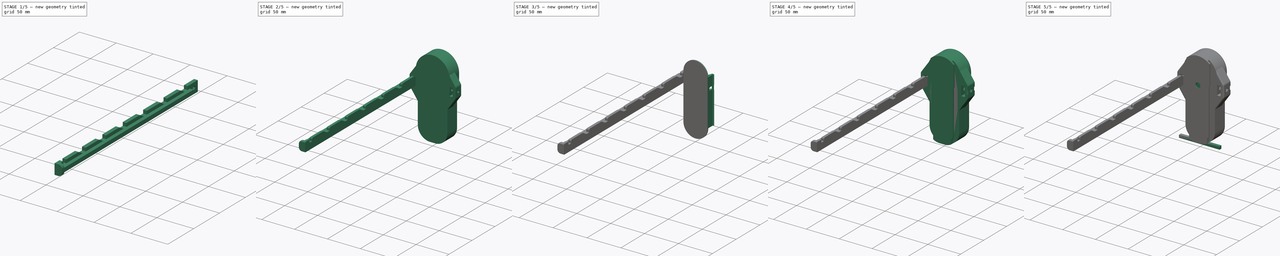
[diagram: build sequence overview — one tinted view per stage of 5, left to right]
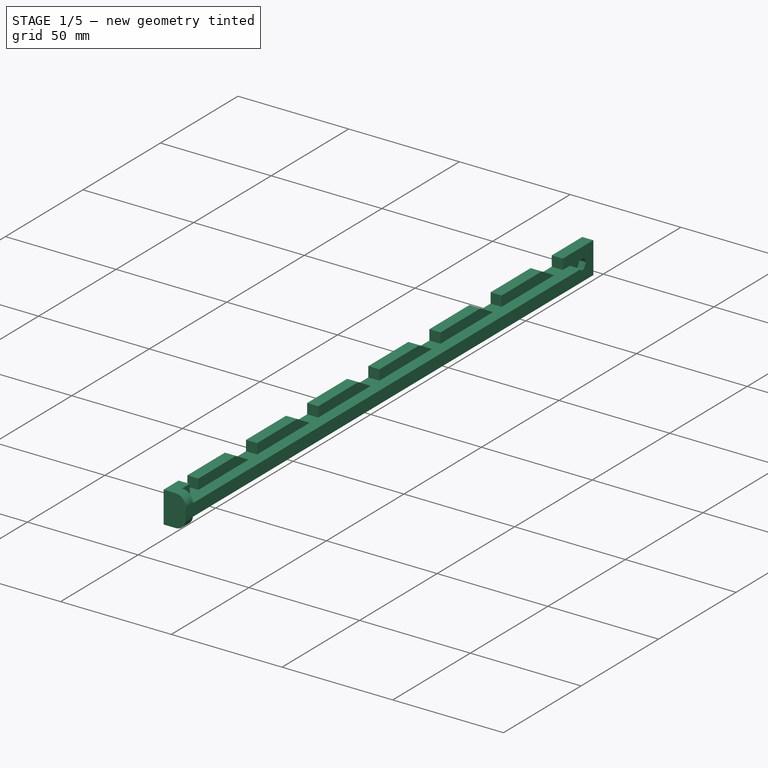
[diagram: stage 1 of 5 — iso view after this stage's code; geometry added in this stage tinted green]
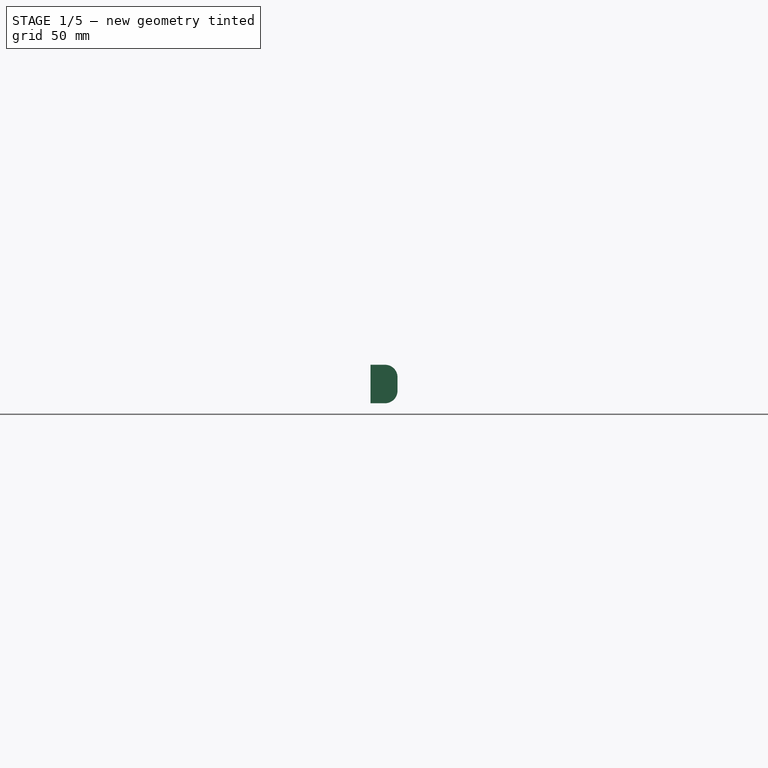
[diagram: stage 1 of 5 — front view after this stage's code; geometry added in this stage tinted green]
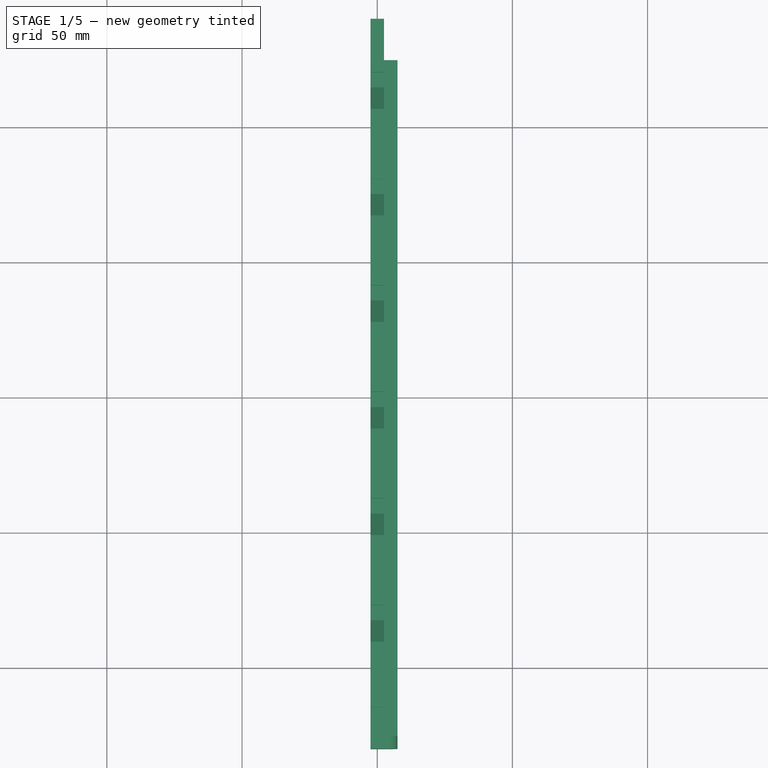
[diagram: stage 1 of 5 — top view after this stage's code; geometry added in this stage tinted green]
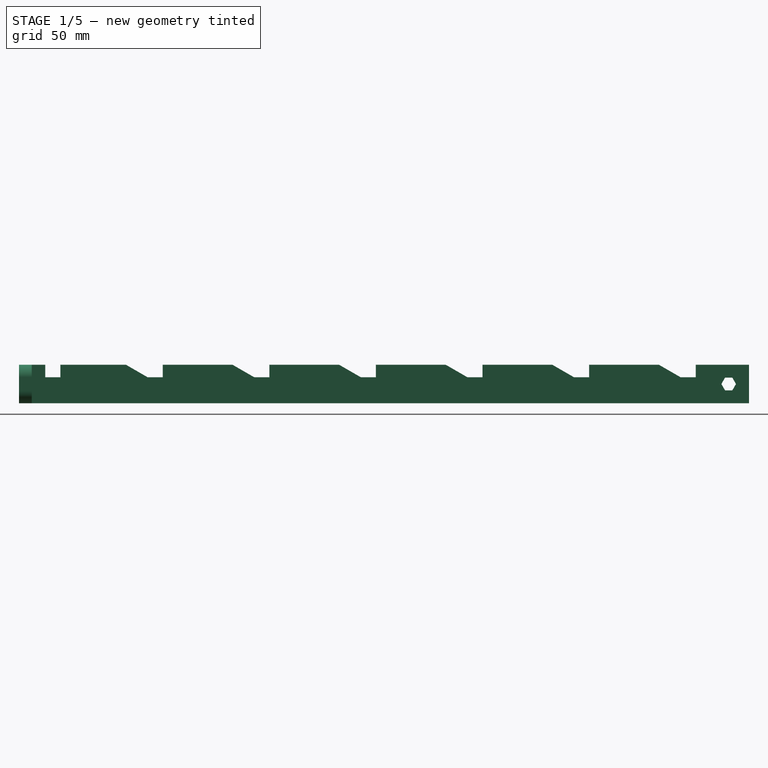
[diagram: stage 1 of 5 — right view after this stage's code; geometry added in this stage tinted green]
FCSTD DOCUMENT  (FreeCAD 0.19R24291 (Git))
Label: TelescopingButtExtensionLowProfile
License: All rights reserved
LicenseURL: http://en.wikipedia.org/wiki/All_rights_reserved
objects: Sketcher::SketchObject×42, PartDesign::Pocket×21, PartDesign::Pad×18, PartDesign::Fillet×10, Spreadsheet::Sheet×9, PartDesign::Body×7, PartDesign::Mirrored×5, PartDesign::LinearPattern×3, App::Part×3, PartDesign::SubtractivePipe×1, PartDesign::AdditivePipe×1, PartDesign::Groove×1, Part::Mirroring×1
note: 162 computed .brp shape members not serialized (recipe doc carries the construction recipe); baked Part::Feature solids carry a one-line shape summary decoded from their .brp

FEATURE [Spreadsheet::Sheet] Spreadsheet  label="P90Measurements"
  cells = A1=ButtDovetail; D1=Overall; G1=ButtPad; I1=Reference Point; J1=Bottom of pad, just at base of dovetail body; L1=SpaceForTelescopingBar; M1(SpaceForTelescopingBar)==0.584"; A2=DovetailHeight; B2(DovetailHeight)==0.192"; D2=ButtOverallHeight; E2(ButtOverallHeight)==4.733"; G2=PadWidestWidth; H2(PadWidestWidth)==2.017"; A3=DovetailBodyWidth; B3(DovetailBodyWidth)==1.093"; D3=PadBCGHoleFromReferencePoint; E3(PadBCGHoleFromReferencePoint)==2.997"; G3=PadThinnestWidth; H3(PadThinnestWidth)==1.772"; A4=DovetailLedgeHeight; B4(DovetailLedgeHeight)==0.1"; D4=PadBCGHoleDiameter; E4(PadBCGHoleDiameter)==0.277"; G4=PadWidestWidthInnerShoulderDistanceFromReferencePoint; H4(PadWidestWidthInnerShoulderDistanceFromReferencePoint)==2.532"; A5=DovetailLedgeWidestWidth; B5(DovetailLedgeWidestWidth)==1.405"; D5=PadBCGHoleDepth; E5(PadBCGHoleDepth)==0.375"; G5=PadWidestWidthOuterShoulderDistanceFromReferencePoint; H5(PadWidestWidthOuterShoulderDistanceFromReferencePoint)==2.785"; A6=DovetailLedgeMiddleWidth; B6(DovetailLedgeMiddleWidth)==1.32"; G6=PadBottomWidth; H6(PadBottomWidth)==0.3"; A7=DovetailMiddleWidthInsideShoulderDistanceFromReferencePoint; B7(DovetailMiddleWidthInsideShoulderDistanceFromReferencePoint)==0.37"; A8=DovetailMiddleWidthOutsideShoulderDistanceFromReferencePoint; B8(DovetailMiddleWidthOutsideShoulderDistanceFromReferencePoint)==0.484"; A9=DovetailBottobBodyBevelDistanceFromReferencePoint; B9(DovetailBottobBodyBevelDistanceFromReferencePoint)==0.154"; A10=DovetailWidestLedgeStartingPointFromReferencePoint; B10(DovetailWidestLedgeStartingPointFromReferencePoint)==3.222"
FEATURE [Spreadsheet::Sheet] Spreadsheet001  label="ProjectSettings"
  cells = A1=Tolerance; A2=LooseTolerance; B2(LooseTolerance)==0.3mm; A3=TightTolerance; B3(TightTolerance)==0.2mm
FEATURE [Sketcher::SketchObject] Sketch  label="DovetailBodySketch"
  FullyConstrained = true
  MapMode = 5
  Placement = pos=(0,0,0) rot=(1,0,0;1.5708rad)
  Support = -> [XZ_Plane]
  expr: Constraints[9] = <<P90Measurements>>.ButtOverallHeight
  expr: Constraints[10] = <<P90Measurements>>.DovetailBodyWidth - <<ProjectSettings>>.LooseTolerance * 2
  sketch-geometry (4):
    g0: LineSegment StartX=-13.5811 StartY=120.218 StartZ=0 EndX=13.5811 EndY=120.218 EndZ=0
    g1: LineSegment StartX=13.5811 StartY=120.218 StartZ=0 EndX=13.5811 EndY=0 EndZ=0
    g2: LineSegment StartX=13.5811 StartY=0 StartZ=0 EndX=-13.5811 EndY=0 EndZ=0
    g3: LineSegment StartX=-13.5811 StartY=0 StartZ=0 EndX=-13.5811 EndY=120.218 EndZ=0
  constraints (11):
    c: Coincident(g0,g1)
    c: Coincident(g1,g2)
    c: Coincident(g2,g3)
    c: Coincident(g3,g0)
    c: Horizontal(g0)
    c: Vertical(g1)
    c: Vertical(g3)
    c: PointOnObject(g1,g-1)
    c: Symmetric(g1,g2,g-2)
    c: DistanceY(g1,g1) = 120.218
    c: DistanceX(g0,g0) = 27.1622
FEATURE [PartDesign::Pad] Pad  label="DovetailBodyPad"
  Direction = (1,1,1)
  Length = 4.8768
  Length2 = 100
  Placement = pos=(0,0,0) rot=(1,0,0;1.5708rad)
  Profile = -> Sketch
  Type = 0
  expr: Length = <<P90Measurements>>.DovetailHeight
FEATURE [Sketcher::SketchObject] Sketch001  label="DovetailLedgeSketch"
  AttachmentOffset = pos=(0,0,4.8768) rot=(0,0,1;0rad)
  FullyConstrained = true
  MapMode = 5
  Placement = pos=(0,-4.8768,-1.1e-15) rot=(1,0,0;1.5708rad)
  Support = -> [XZ_Plane]
  expr: Constraints[9] = <<P90Measurements>>.ButtOverallHeight
  expr: Constraints[10] = <<P90Measurements>>.DovetailLedgeWidestWidth - <<ProjectSettings>>.LooseTolerance * 2
  expr: .AttachmentOffset.Base.z = <<P90Measurements>>.DovetailHeight
  sketch-geometry (4):
    g0: LineSegment StartX=-17.5435 StartY=120.218 StartZ=0 EndX=17.5435 EndY=120.218 EndZ=0
    g1: LineSegment StartX=17.5435 StartY=120.218 StartZ=0 EndX=17.5435 EndY=0 EndZ=0
    g2: LineSegment StartX=17.5435 StartY=0 StartZ=0 EndX=-17.5435 EndY=0 EndZ=0
    g3: LineSegment StartX=-17.5435 StartY=0 StartZ=0 EndX=-17.5435 EndY=120.218 EndZ=0
  constraints (11):
    c: Coincident(g0,g1)
    c: Coincident(g1,g2)
    c: Coincident(g2,g3)
    c: Coincident(g3,g0)
    c: Horizontal(g0)
    c: Vertical(g1)
    c: Vertical(g3)
    c: PointOnObject(g1,g-1)
    c: Symmetric(g2,g1,g-2)
    c: DistanceY(g1,g1) = 120.218
    c: DistanceX(g0,g0) = 35.087
FEATURE [PartDesign::Pad] Pad001  label="DovetailLedgePad"
  BaseFeature = -> Pad
  Direction = (1,1,1)
  Length = 2.24
  Length2 = 100
  Placement = pos=(0,0,0) rot=(1,0,0;1.5708rad)
  Profile = -> Sketch001
  Refine = true
  Reversed = true
  Type = 0
  expr: Length = <<P90Measurements>>.DovetailLedgeHeight - <<ProjectSettings>>.LooseTolerance
FEATURE [Sketcher::SketchObject] Sketch002  label="DovetailLedgeCutSketch"
  FullyConstrained = true
  MapMode = 5
  Placement = pos=(0,0,0) rot=(1,0,0;1.5708rad)
  Support = -> [XZ_Plane]
  expr: Constraints[31] = <<P90Measurements>>.ButtOverallHeight
  expr: Constraints[37] = <<P90Measurements>>.DovetailMiddleWidthInsideShoulderDistanceFromReferencePoint
  expr: Constraints[35] = <<P90Measurements>>.DovetailBodyWidth - <<ProjectSettings>>.LooseTolerance * 2
  expr: Constraints[36] = <<P90Measurements>>.DovetailLedgeMiddleWidth - <<ProjectSettings>>.LooseTolerance * 2
  expr: Constraints[32] = <<P90Measurements>>.DovetailLedgeWidestWidth - <<ProjectSettings>>.LooseTolerance * 2
  expr: Constraints[38] = <<P90Measurements>>.DovetailMiddleWidthOutsideShoulderDistanceFromReferencePoint
  expr: Constraints[39] = <<P90Measurements>>.DovetailWidestLedgeStartingPointFromReferencePoint
  sketch-geometry (16):
    g0: LineSegment StartX=-27.5435 StartY=130.218 StartZ=0 EndX=27.5435 EndY=130.218 EndZ=0
    g1: LineSegment StartX=27.5435 StartY=130.218 StartZ=0 EndX=27.5435 EndY=-10 EndZ=0
    g2: LineSegment StartX=27.5435 StartY=-10 StartZ=0 EndX=-27.5435 EndY=-10 EndZ=0
    g3: LineSegment StartX=-27.5435 StartY=-10 StartZ=0 EndX=-27.5435 EndY=130.218 EndZ=0
    g4: LineSegment StartX=-13.5811 StartY=0 StartZ=0 EndX=13.5811 EndY=0 EndZ=0
    g5: LineSegment StartX=13.5811 StartY=0 StartZ=0 EndX=13.5811 EndY=9.398 EndZ=0
    g6: LineSegment StartX=13.5811 StartY=9.398 StartZ=0 EndX=16.464 EndY=12.2936 EndZ=0
    g7: LineSegment StartX=16.464 StartY=12.2936 StartZ=0 EndX=16.464 EndY=81.8388 EndZ=0
    g8: LineSegment StartX=16.464 StartY=81.8388 StartZ=0 EndX=17.5435 EndY=81.8388 EndZ=0
    g9: LineSegment StartX=17.5435 StartY=81.8388 StartZ=0 EndX=17.5435 EndY=120.218 EndZ=0
    g10: LineSegment StartX=17.5435 StartY=120.218 StartZ=0 EndX=-17.5435 EndY=120.218 EndZ=0
    g11: LineSegment StartX=-17.5435 StartY=120.218 StartZ=0 EndX=-17.5435 EndY=81.8388 EndZ=0
    g12: LineSegment StartX=-17.5435 StartY=81.8388 StartZ=0 EndX=-16.464 EndY=81.8388 EndZ=0
    g13: LineSegment StartX=-16.464 StartY=81.8388 StartZ=0 EndX=-16.464 EndY=12.2936 EndZ=0
    g14: LineSegment StartX=-16.464 StartY=12.2936 StartZ=0 EndX=-13.5811 EndY=9.398 EndZ=0
    g15: LineSegment StartX=-13.5811 StartY=9.398 StartZ=0 EndX=-13.5811 EndY=0 EndZ=0
  constraints (45):
    c: Coincident(g0,g1)
    c: Coincident(g1,g2)
    c: Coincident(g2,g3)
    c: Coincident(g3,g0)
    c: Horizontal(g0)
    c: Horizontal(g2)
    c: Vertical(g1)
    c: Vertical(g3)
    c: PointOnObject(g4,g-1)
    c: Coincident(g4,g5)
    c: Vertical(g5)
    c: Coincident(g5,g6)
    c: Coincident(g6,g7)
    c: Vertical(g7)
    c: Coincident(g7,g8)
    c: Horizontal(g8)
    c: Coincident(g8,g9)
    c: Vertical(g9)
    c: Coincident(g9,g10)
    c: Coincident(g10,g11)
    c: Vertical(g11)
    c: Coincident(g11,g12)
    c: Horizontal(g12)
    c: Coincident(g12,g13)
    c: Vertical(g13)
    c: Coincident(g13,g14)
    c: Coincident(g14,g15)
    c: Coincident(g15,g4)
    c: Vertical(g15)
    c: Horizontal(g14,g5)
    c: Horizontal(g13,g6)
    c: DistanceY(g4,g9) = 120.218
    c: DistanceX(g10,g10) = 35.087
    c: Symmetric(g10,g9,g-2)
    c: Symmetric(g12,g7,g-2)
    c: DistanceX(g4,g4) = 27.1622
    c: DistanceX(g12,g7) = 32.928
    c: DistanceY(g14) = 9.398
    c: DistanceY(g4,g13) = 12.2936
    c: DistanceY(g-1,g7) = 81.8388
    c: DistanceY(g10,g0) = 10
    c: DistanceX(g0,g10) = 10
    c: DistanceX(g9,g1) = 10
    c: DistanceY(g1,g4) = 10
    c: Symmetric(g4,g4,g-2)
FEATURE [PartDesign::Pocket] Pocket  label="DovetailLedgeCutPocket"
  BaseFeature = -> Pad001
  Length = 5
  Length2 = 100
  Placement = pos=(0,0,0) rot=(1,0,0;1.5708rad)
  Profile = -> Sketch002
  Reversed = true
  Type = 1
FEATURE [Sketcher::SketchObject] Sketch003  label="PadBodySketch"
  FullyConstrained = true
  MapMode = 5
  Placement = pos=(0,0,0) rot=(1,0,0;1.5708rad)
  Support = -> [XZ_Plane]
  expr: Constraints[20] = <<P90Measurements>>.ButtOverallHeight
  expr: Constraints[21] = <<P90Measurements>>.PadWidestWidth
  expr: Constraints[19] = <<P90Measurements>>.PadThinnestWidth
  expr: Constraints[22] = <<P90Measurements>>.PadWidestWidthOuterShoulderDistanceFromReferencePoint
  expr: Constraints[27] = <<P90Measurements>>.PadWidestWidthInnerShoulderDistanceFromReferencePoint
  sketch-geometry (12):
    g0: LineSegment StartX=-22.5044 StartY=0 StartZ=0 EndX=22.5044 EndY=0 EndZ=0
    g1: LineSegment StartX=22.5044 StartY=0 StartZ=0 EndX=22.5044 EndY=63.2152 EndZ=0
    g2: LineSegment StartX=-22.5044 StartY=63.2152 StartZ=0 EndX=-22.5044 EndY=0 EndZ=0
    g3: LineSegment StartX=-25.6159 StartY=120.218 StartZ=0 EndX=25.6159 EndY=120.218 EndZ=0
    g4: LineSegment StartX=25.6159 StartY=120.218 StartZ=0 EndX=25.6159 EndY=70.739 EndZ=0
    g5: LineSegment StartX=-25.6159 StartY=70.739 StartZ=0 EndX=-25.6159 EndY=120.218 EndZ=0
    g6: LineSegment StartX=-25.3621 StartY=69.6414 StartZ=0 EndX=-22.7582 EndY=64.3128 EndZ=0
    g7: LineSegment StartX=25.3621 StartY=69.6414 StartZ=0 EndX=22.7582 EndY=64.3128 EndZ=0
    g8: ArcOfCircle CenterX=-23.1159 CenterY=70.739 CenterZ=0 NormalX=0 NormalY=0 NormalZ=1 AngleXU=0 Radius=2.5 StartAngle=3.14159 EndAngle=3.59612
    g9: ArcOfCircle CenterX=-25.0044 CenterY=63.2152 CenterZ=0 NormalX=0 NormalY=0 NormalZ=1 AngleXU=0 Radius=2.5 StartAngle=2e-16 EndAngle=0.454529
    g10: ArcOfCircle CenterX=23.1159 CenterY=70.739 CenterZ=0 NormalX=0 NormalY=0 NormalZ=1 AngleXU=0 Radius=2.5 StartAngle=5.82866 EndAngle=6.28319
    g11: ArcOfCircle CenterX=25.0044 CenterY=63.2152 CenterZ=0 NormalX=0 NormalY=0 NormalZ=1 AngleXU=0 Radius=2.5 StartAngle=2.68706 EndAngle=3.14159
  constraints (28):
    c: Coincident(g0,g1)
    c: Coincident(g2,g0)
    c: Vertical(g1)
    c: Vertical(g2)
    c: PointOnObject(g0,g-1)
    c: Coincident(g3,g4)
    c: Coincident(g5,g3)
    c: Vertical(g4)
    c: Vertical(g5)
    c: Tangent(g8,g5) = 1.5708
    c: Tangent(g8,g6) = -1.5708
    c: Tangent(g9,g6) = 1.5708
    c: Tangent(g11,g1) = 1.5708
    c: Tangent(g11,g7) = -1.5708
    c: Tangent(g7,g10) = 1.5708
    c: Tangent(g10,g4) = 1.5708
    c: Tangent(g9,g2) = 1.5708
    c: Symmetric(g0,g0,g-2)
    c: Symmetric(g3,g3,g-2)
    c: DistanceX(g0,g0) = 45.0088
    c: DistanceY(g0,g3) = 120.218
    c: DistanceX(g3,g3) = 51.2318
    c: DistanceY(g-1,g8) = 70.739
    c: Symmetric(g7,g6,g-2)
    c: Symmetric(g6,g7,g-2)
    c: Equal(g11,g10)
    c: Diameter(g11) = 5
    c: DistanceY(g6) = 64.3128
FEATURE [PartDesign::Pad] Pad002  label="PadBodyPad"
  BaseFeature = -> Pocket
  Direction = (1,1,1)
  Length = 15
  Length2 = 100
  Placement = pos=(0,0,0) rot=(1,0,0;1.5708rad)
  Profile = -> Sketch003
  Reversed = true
  Type = 0
FEATURE [Sketcher::SketchObject] Sketch005  label="MainBarSketch"
  AttachmentOffset = pos=(0,0,-40) rot=(0,0,1;0rad)
  FullyConstrained = true
  MapMode = 5
  Placement = pos=(0,40,8.9e-15) rot=(1,0,0;1.5708rad)
  Support = -> [XZ_Plane001]
  expr: Constraints[9] = <<TelescopingBarSettings>>.BarHeight
  expr: .AttachmentOffset.Base.z = -1 * <<TelescopingBarSettings>>.BarOffsetFromCenter
  expr: Constraints[8] = <<TelescopingBarSettings>>.BarThickness
  sketch-geometry (4):
    g0: LineSegment StartX=-2.5 StartY=7.1168 StartZ=0 EndX=2.5 EndY=7.1168 EndZ=0
    g1: LineSegment StartX=2.5 StartY=7.1168 StartZ=0 EndX=2.5 EndY=-7.1168 EndZ=0
    g2: LineSegment StartX=2.5 StartY=-7.1168 StartZ=0 EndX=-2.5 EndY=-7.1168 EndZ=0
    g3: LineSegment StartX=-2.5 StartY=-7.1168 StartZ=0 EndX=-2.5 EndY=7.1168 EndZ=0
  constraints (10):
    c: Coincident(g0,g1)
    c: Coincident(g1,g2)
    c: Coincident(g2,g3)
    c: Coincident(g3,g0)
    c: Horizontal(g2)
    c: Vertical(g3)
    c: Symmetric(g1,g0,g-1)
    c: Symmetric(g0,g0,g-2)
    c: DistanceX(g0,g0) = 5
    c: DistanceY(g3,g3) = 14.2336
FEATURE [Spreadsheet::Sheet] Spreadsheet002  label="TelescopingBarSettings"
  cells = A1=BarOffsetFromCenter; B1(BarOffsetFromCenter)==<<PadBodyPad>>.Length + <<TelescoptingPadBodyPad>>.Length; A2=LengthFromButtToChargingHandleShelf; B2(LengthFromButtToChargingHandleShelf)==310mm; A3=BarLength; B3(BarLength)==270mm; A4=BarThickness; B4(BarThickness)==5mm; A5=CrosspinThickness; B5(CrosspinThickness)==BarThickness; A6=BarHeight; B6(BarHeight)==<<P90Measurements>>.SpaceForTelescopingBar - <<ProjectSettings>>.LooseTolerance * 2; A7=LockingPinThickness; B7(LockingPinThickness)==5mm; A8=BarNumberOfKnotches; B8(BarNumberOfKnotches)=6
FEATURE [PartDesign::Pad] Pad003  label="MainBarPad"
  Direction = (1,1,1)
  Length = 270
  Length2 = 100
  Placement = pos=(0,0,0) rot=(1,0,0;1.5708rad)
  Profile = -> Sketch005
  Type = 0
  expr: Length = <<TelescopingBarSettings>>.BarLength
FEATURE [Sketcher::SketchObject] Sketch006  label="CrossSupportBarSketch"
  FullyConstrained = true
  MapMode = 5
  Support = -> [XY_Plane001]
  expr: Constraints[5] = <<TelescopingBarSettings>>.BarThickness / 2
  expr: Constraints[4] = <<TelescopingBarSettings>>.BarThickness
  expr: Constraints[3] = <<TelescopingBarSettings>>.BarOffsetFromCenter - <<TelescoptingPadBodyPad>>.Length - <<ProjectSettings>>.TightTolerance + 10mm
  expr: Constraints[6] = <<TelescopingBarSettings>>.BarLength - <<TelescoptingPadBodyPad>>.Length + 10mm - <<ProjectSettings>>.TightTolerance
  sketch-geometry (5):
    g0: LineSegment StartX=2.5 StartY=-230 StartZ=0 EndX=7.5 EndY=-230 EndZ=0
    g1: LineSegment StartX=2.5 StartY=24.8 StartZ=0 EndX=2.5 EndY=-230 EndZ=0
    g2: LineSegment StartX=2.5 StartY=24.8 StartZ=0 EndX=7.5 EndY=24.8 EndZ=0
    g3: LineSegment StartX=7.5 StartY=24.8 StartZ=0 EndX=7.5 EndY=0 EndZ=0
    g4: LineSegment StartX=7.5 StartY=0 StartZ=0 EndX=7.5 EndY=-230 EndZ=0
  constraints (15):
    c: Coincident(g1,g0)
    c: Horizontal(g0)
    c: Vertical(g1)
    c: DistanceY(g-1,g1) = 24.8
    c: DistanceX(g1,g3) = 5
    c: DistanceX(g-1,g1) = 2.5
    c: DistanceY(g0,g1) = 254.8
    c: Coincident(g1,g2)
    c: Horizontal(g2)
    c: Coincident(g2,g3)
    c: Vertical(g3)
    c: Horizontal(g3,g-1)
    c: Coincident(g4,g3)
    c: Coincident(g4,g0)
    c: Vertical(g4)
FEATURE [PartDesign::Pad] Pad004  label="CrossSupportBarPad"
  BaseFeature = -> Pad003
  Direction = (1,1,1)
  Length = 5
  Length2 = 100
  Midplane = true
  Placement = pos=(0,0,0) rot=(1,0,0;1.5708rad)
  Profile = -> Sketch006
  Type = 0
  expr: Length = <<TelescopingBarSettings>>.BarThickness
FEATURE [Sketcher::SketchObject] Sketch007  label="BarEndplateSketch"
  FullyConstrained = true
  MapMode = 5
  Placement = pos=(0,-230,0) rot=(1,0,0;1.5708rad)
  Support = -> [Pad004]
  expr: Constraints[0] = <<TelescopingBarSettings>>.BarHeight
  expr: Constraints[3] = <<TelescopingBarSettings>>.BarThickness * 2
  expr: Constraints[4] = <<TelescopingBarSettings>>.BarThickness
  expr: Constraints[2] = <<TelescopingBarSettings>>.BarThickness / 2
  expr: Constraints[9] = <<TelescopingBarSettings>>.BarThickness
  sketch-geometry (8):
    g0: LineSegment StartX=7.5 StartY=2.5 StartZ=0 EndX=7.5 EndY=-2.5 EndZ=0
    g1: LineSegment StartX=-2.5 StartY=-7.1168 StartZ=0 EndX=-2.5 EndY=7.1168 EndZ=0
    g2: LineSegment StartX=-2.5 StartY=7.1168 StartZ=0 EndX=2.5 EndY=7.1168 EndZ=0
    g3: LineSegment StartX=-2.5 StartY=-7.1168 StartZ=0 EndX=2.5 EndY=-7.1168 EndZ=0
    g4: LineSegment StartX=2.5 StartY=7.1168 StartZ=0 EndX=2.8832 EndY=7.1168 EndZ=0
    g5: LineSegment StartX=2.5 StartY=-7.1168 StartZ=0 EndX=2.88322 EndY=-7.1168 EndZ=0
    g6: ArcOfCircle CenterX=2.8832 CenterY=-2.5 CenterZ=0 NormalX=0 NormalY=0 NormalZ=1 AngleXU=0 Radius=4.6168 StartAngle=4.71239 EndAngle=6.28319
    g7: ArcOfCircle CenterX=2.8832 CenterY=2.5 CenterZ=0 NormalX=0 NormalY=0 NormalZ=1 AngleXU=0 Radius=4.6168 StartAngle=1e-16 EndAngle=1.5708
  constraints (21):
    c: DistanceY(g1,g1) = 14.2336
    c: Symmetric(g1,g1,g-1)
    c: DistanceX(g1,g-1) = 2.5
    c: DistanceX(g1,g0) = 10
    c: DistanceY(g0,g0) = 5
    c: Symmetric(g0,g0,g-1)
    c: Coincident(g2,g1)
    c: Coincident(g3,g1)
    c: Horizontal(g3)
    c: DistanceX(g3,g3) = 5
    c: Symmetric(g3,g2,g-1)
    c: Coincident(g4,g2)
    c: Coincident(g5,g3)
    c: Horizontal(g5)
    c: Coincident(g6,g5)
    c: Coincident(g6,g0)
    c: Horizontal(g4)
    c: Tangent(g7,g4) = 1.5708
    c: Tangent(g7,g0) = 1.5708
    c: Tangent(g6,g0)
    c: Tangent(g6,g5)
FEATURE [PartDesign::Pad] Pad005  label="BarEndplatePad"
  BaseFeature = -> Pad004
  Direction = (1,1,1)
  Length = 4.7
  Length2 = 100
  Placement = pos=(0,0,0) rot=(1,0,0;1.5708rad)
  Profile = -> Sketch007
  Reversed = true
  Type = 0
  expr: Length = <<TelescopingBarSettings>>.BarThickness - <<ProjectSettings>>.LooseTolerance
FEATURE [Sketcher::SketchObject] Sketch008  label="TelescoptingPadBodySketch"
  FullyConstrained = true
  MapMode = 5
  Placement = pos=(0,0,0) rot=(1,0,0;1.5708rad)
  Support = -> [XZ_Plane002]
  expr: Constraints[27] = <<P90Measurements>>.PadWidestWidthInnerShoulderDistanceFromReferencePoint
  expr: Constraints[22] = <<P90Measurements>>.PadWidestWidthOuterShoulderDistanceFromReferencePoint
  expr: Constraints[19] = <<P90Measurements>>.PadThinnestWidth
  expr: Constraints[21] = <<P90Measurements>>.PadWidestWidth
  expr: Constraints[20] = <<P90Measurements>>.ButtOverallHeight
  sketch-geometry (12):
    g0: LineSegment StartX=-22.5044 StartY=0 StartZ=0 EndX=22.5044 EndY=0 EndZ=0
    g1: LineSegment StartX=22.5044 StartY=0 StartZ=0 EndX=22.5044 EndY=63.2152 EndZ=0
    g2: LineSegment StartX=-22.5044 StartY=63.2152 StartZ=0 EndX=-22.5044 EndY=0 EndZ=0
    g3: LineSegment StartX=-25.6159 StartY=120.218 StartZ=0 EndX=25.6159 EndY=120.218 EndZ=0
    g4: LineSegment StartX=25.6159 StartY=120.218 StartZ=0 EndX=25.6159 EndY=70.739 EndZ=0
    g5: LineSegment StartX=-25.6159 StartY=70.739 StartZ=0 EndX=-25.6159 EndY=120.218 EndZ=0
    g6: LineSegment StartX=-25.3621 StartY=69.6414 StartZ=0 EndX=-22.7582 EndY=64.3128 EndZ=0
    g7: LineSegment StartX=25.3621 StartY=69.6414 StartZ=0 EndX=22.7582 EndY=64.3128 EndZ=0
    g8: ArcOfCircle CenterX=-23.1159 CenterY=70.739 CenterZ=0 NormalX=0 NormalY=0 NormalZ=1 AngleXU=0 Radius=2.5 StartAngle=3.14159 EndAngle=3.59612
    g9: ArcOfCircle CenterX=-25.0044 CenterY=63.2152 CenterZ=0 NormalX=0 NormalY=0 NormalZ=1 AngleXU=0 Radius=2.5 StartAngle=0 EndAngle=0.454529
    g10: ArcOfCircle CenterX=23.1159 CenterY=70.739 CenterZ=0 NormalX=0 NormalY=0 NormalZ=1 AngleXU=0 Radius=2.5 StartAngle=5.82866 EndAngle=6.28319
    g11: ArcOfCircle CenterX=25.0044 CenterY=63.2152 CenterZ=0 NormalX=0 NormalY=0 NormalZ=1 AngleXU=0 Radius=2.5 StartAngle=2.68706 EndAngle=3.14159
  constraints (29):
    c: Coincident(g0,g1)
    c: Coincident(g2,g0)
    c: Vertical(g1)
    c: Vertical(g2)
    c: PointOnObject(g0,g-1)
    c: Coincident(g3,g4)
    c: Coincident(g5,g3)
    c: Vertical(g4)
    c: Vertical(g5)
    c: Tangent(g8,g5) = 1.5708
    c: Tangent(g8,g6) = -1.5708
    c: Tangent(g9,g6) = 1.5708
    c: Tangent(g11,g1) = 1.5708
    c: Tangent(g11,g7) = -1.5708
    c: Tangent(g7,g10) = 1.5708
    c: Tangent(g10,g4) = 1.5708
    c: Tangent(g9,g2) = 1.5708
    c: Symmetric(g0,g0,g-2)
    c: Symmetric(g3,g3,g-2)
    c: DistanceX(g0,g0) = 45.0088
    c: DistanceY(g0,g3) = 120.218
    c: DistanceX(g3,g3) = 51.2318
    c: DistanceY(g-1,g8) = 70.739
    c: Symmetric(g7,g6,g-2)
    c: Symmetric(g6,g7,g-2)
    c: Equal(g11,g10)
    c: Diameter(g11) = 5
    c: DistanceY(g6) = 64.3128
    c: Angle(g1,g7) = 2.68706  'PadAngle'
FEATURE [PartDesign::Pad] Pad006  label="TelescoptingPadBodyPad"
  Direction = (1,1,1)
  Length = 25
  Length2 = 100
  Placement = pos=(0,0,0) rot=(1,0,0;1.5708rad)
  Profile = -> Sketch008
  Reversed = true
  Type = 0
FEATURE [Sketcher::SketchObject] Sketch012  label="BarCrosspinHoleSketch"
  FullyConstrained = true
  MapMode = 5
  Placement = pos=(0,0,0) rot=(0.57735,0.57735,0.57735;2.0944rad)
  Support = -> [YZ_Plane001]
  expr: Constraints[7] = <<TelescopingBarSettings>>.CrosspinThickness + <<ProjectSettings>>.TightTolerance * 2
  expr: Constraints[10] = <<TelescopingBarSettings>>.BarOffsetFromCenter - <<TelescopingBarSettings>>.BarThickness + <<ProjectSettings>>.TightTolerance
  sketch-geometry (11):
    g0: LineSegment StartX=29.8 StartY=2.7 StartZ=0 EndX=35.2 EndY=2.7 EndZ=0
    g1: LineSegment StartX=35.2 StartY=2.7 StartZ=0 EndX=35.2 EndY=-2.7 EndZ=0
    g2: LineSegment StartX=35.2 StartY=-2.7 StartZ=0 EndX=29.8 EndY=-2.7 EndZ=0
    g3: LineSegment StartX=29.8 StartY=-2.7 StartZ=0 EndX=29.8 EndY=2.7 EndZ=0
    g4: LineSegment StartX=35.2 StartY=3e-16 StartZ=0 EndX=33.85 EndY=2.33827 EndZ=0
    g5: LineSegment StartX=33.85 StartY=2.33827 StartZ=0 EndX=31.15 EndY=2.33827 EndZ=0
    g6: LineSegment StartX=31.15 StartY=2.33827 StartZ=0 EndX=29.8 EndY=4e-16 EndZ=0
    g7: LineSegment StartX=29.8 StartY=3e-16 StartZ=0 EndX=31.15 EndY=-2.33827 EndZ=0
    g8: LineSegment StartX=31.15 StartY=-2.33827 StartZ=0 EndX=33.85 EndY=-2.33827 EndZ=0
    g9: LineSegment StartX=33.85 StartY=-2.33827 StartZ=0 EndX=35.2 EndY=4e-16 EndZ=0
    g10: Circle CenterX=32.5 CenterY=0 CenterZ=0 NormalX=0 NormalY=0 NormalZ=1 AngleXU=0 Radius=2.7
  constraints (28):
    c: Coincident(g0,g1)
    c: Coincident(g1,g2)
    c: Coincident(g2,g3)
    c: Coincident(g3,g0)
    c: Horizontal(g0)
    c: Horizontal(g2)
    c: Vertical(g1)
    c: DistanceX(g0,g0) = 5.4
    c: Equal(g0,g3)
    c: Symmetric(g0,g2,g-1)
    c: DistanceX(g-1,g0) = 35.2
    c: Coincident(g4,g5)
    c: Coincident(g5,g6)
    c: Coincident(g6,g7)
    c: Coincident(g7,g8)
    c: Coincident(g8,g9)
    c: Coincident(g9,g4)
    c: Equal(g4, g5-g9) x5
    c: PointOnObject(g4,g10)
    c: PointOnObject(g5,g10)
    c: PointOnObject(g6,g10)
    c: PointOnObject(g7,g10)
    c: PointOnObject(g8,g10)
    c: PointOnObject(g9,g10)
    c: PointOnObject(g10,g-1)
    c: PointOnObject(g9,g1)
    c: Horizontal(g6,g4)
    c: PointOnObject(g6,g3)
FEATURE [PartDesign::Pocket] Pocket004  label="BarCrosspinHolePocket"
  BaseFeature = -> Pad005
  Length = 5
  Length2 = 100
  Midplane = true
  Placement = pos=(0,0,0) rot=(1,0,0;1.5708rad)
  Profile = -> Sketch012
  Type = 1
FEATURE [Sketcher::SketchObject] Sketch013  label="BarRackSketch"
  FullyConstrained = true
  MapMode = 5
  Placement = pos=(0,0,0) rot=(0.57735,0.57735,0.57735;2.0944rad)
  Support = -> [YZ_Plane001]
  expr: Constraints[11] = <<P90Measurements>>.SpaceForTelescopingBar / 2 - <<ProjectSettings>>.LooseTolerance
  expr: Constraints[9] = <<CentralPadSettings>>.PadThickness + 5mm + <<ProjectSettings>>.LooseTolerance
  expr: Constraints[8] = <<TelescopingBarSettings>>.CrosspinThickness + <<ProjectSettings>>.LooseTolerance * 2
  expr: Constraints[7] = <<TelescopingBarSettings>>.BarThickness / 2
  sketch-geometry (4):
    g0: LineSegment StartX=6.70347 StartY=7.1168 StartZ=0 EndX=20.3 EndY=7.1168 EndZ=0
    g1: LineSegment StartX=20.3 StartY=7.1168 StartZ=0 EndX=20.3 EndY=2.5 EndZ=0
    g2: LineSegment StartX=20.3 StartY=2.5 StartZ=0 EndX=14.7 EndY=2.5 EndZ=0
    g3: LineSegment StartX=14.7 StartY=2.5 StartZ=0 EndX=6.70347 EndY=7.1168 EndZ=0
  constraints (12):
    c: Coincident(g0,g1)
    c: Coincident(g1,g2)
    c: Coincident(g2,g3)
    c: Coincident(g3,g0)
    c: Horizontal(g0)
    c: Horizontal(g2)
    c: Vertical(g1)
    c: DistanceY(g-1,g1) = 2.5
    c: DistanceX(g2,g2) = 5.6
    c: DistanceX(g-1,g1) = 20.3
    c: Angle(g2,g3) = 2.61799
    c: DistanceY(g-1,g0) = 7.1168
FEATURE [Spreadsheet::Sheet] Spreadsheet004  label="CentralPadSettings"
  cells = A1=PadThickness; B1(PadThickness)==<<PadBodyPad>>.Length; A2=LockingButtonHoleDepth; B2(LockingButtonHoleDepth)==<<P90Measurements>>.PadWidestWidthOuterShoulderDistanceFromReferencePoint + <<TelescopingBarSettings>>.BarThickness + <<TelescopingBarSettings>>.LockingPinThickness * 3 + SpringMaxHeight; A3=SpringMaxHeight; B3(SpringMaxHeight)==20mm
FEATURE [PartDesign::Pocket] Pocket005  label="BarRackPocket"
  BaseFeature = -> Pocket004
  Length = 5
  Length2 = 100
  Midplane = true
  Placement = pos=(0,0,0) rot=(1,0,0;1.5708rad)
  Profile = -> Sketch013
  Type = 1
FEATURE [PartDesign::LinearPattern] LinearPattern  label="BarRackPattern"
  BaseFeature = -> Pocket005
  Direction = -> Sketch013 [H_Axis]
  Length = 197.143
  Occurrences = 6
  Originals = -> [Pocket005]
  Placement = pos=(0,0,0) rot=(1,0,0;1.5708rad)
  Reversed = true
  expr: Length = (<<TelescopingBarSettings>>.BarLength - <<TelescopingBarSettings>>.BarOffsetFromCenter) / (Occurrences + 1) * Occurrences
  expr: Occurrences = <<TelescopingBarSettings>>.BarNumberOfKnotches
FEATURE [Sketcher::SketchObject] Sketch015  label="FinalSlotSketch"
  FullyConstrained = true
  MapMode = 5
  Placement = pos=(0,0,0) rot=(0.57735,0.57735,0.57735;2.0944rad)
  Support = -> [YZ_Plane001]
  expr: Constraints[11] = <<TelescopingBarSettings>>.BarThickness / 2
  expr: Constraints[10] = <<P90Measurements>>.SpaceForTelescopingBar / 2 - <<ProjectSettings>>.LooseTolerance
  expr: Constraints[9] = <<TelescopingBarSettings>>.CrosspinThickness + <<ProjectSettings>>.LooseTolerance * 2
  expr: Constraints[8] = <<TelescopingBarSettings>>.BarLength - <<TelescopingBarSettings>>.BarOffsetFromCenter - <<CentralPadSettings>>.PadThickness - <<ProjectSettings>>.LooseTolerance
  sketch-geometry (4):
    g0: LineSegment StartX=-214.7 StartY=7.1168 StartZ=0 EndX=-220.3 EndY=7.1168 EndZ=0
    g1: LineSegment StartX=-220.3 StartY=7.1168 StartZ=0 EndX=-220.3 EndY=2.5 EndZ=0
    g2: LineSegment StartX=-220.3 StartY=2.5 StartZ=0 EndX=-214.7 EndY=2.5 EndZ=0
    g3: LineSegment StartX=-214.7 StartY=2.5 StartZ=0 EndX=-214.7 EndY=7.1168 EndZ=0
  constraints (12):
    c: Coincident(g0,g1)
    c: Coincident(g1,g2)
    c: Coincident(g2,g3)
    c: Coincident(g3,g0)
    c: Horizontal(g0)
    c: Horizontal(g2)
    c: Vertical(g1)
    c: Vertical(g3)
    c: DistanceX(g2,g-1) = 214.7
    c: DistanceX(g2,g2) = 5.6
    c: DistanceY(g-1,g0) = 7.1168
    c: DistanceY(g-1,g1) = 2.5
FEATURE [PartDesign::Pocket] Pocket006  label="FinalSlotPad"
  BaseFeature = -> LinearPattern
  Length = 5
  Length2 = 100
  Midplane = true
  Placement = pos=(0,0,0) rot=(1,0,0;1.5708rad)
  Profile = -> Sketch015
  Refine = true
  Type = 1
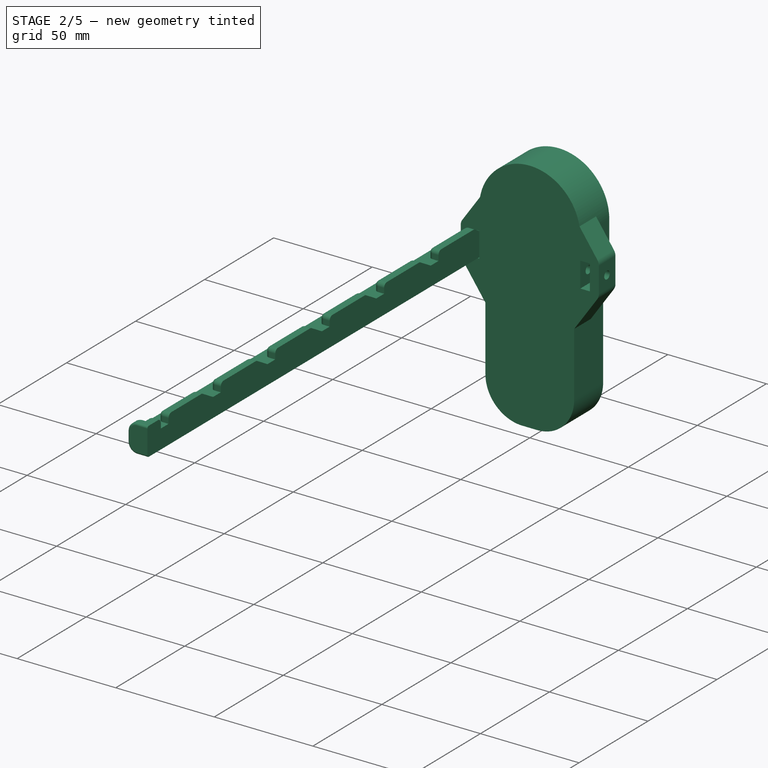
[diagram: stage 2 of 5 — iso view after this stage's code; geometry added in this stage tinted green]
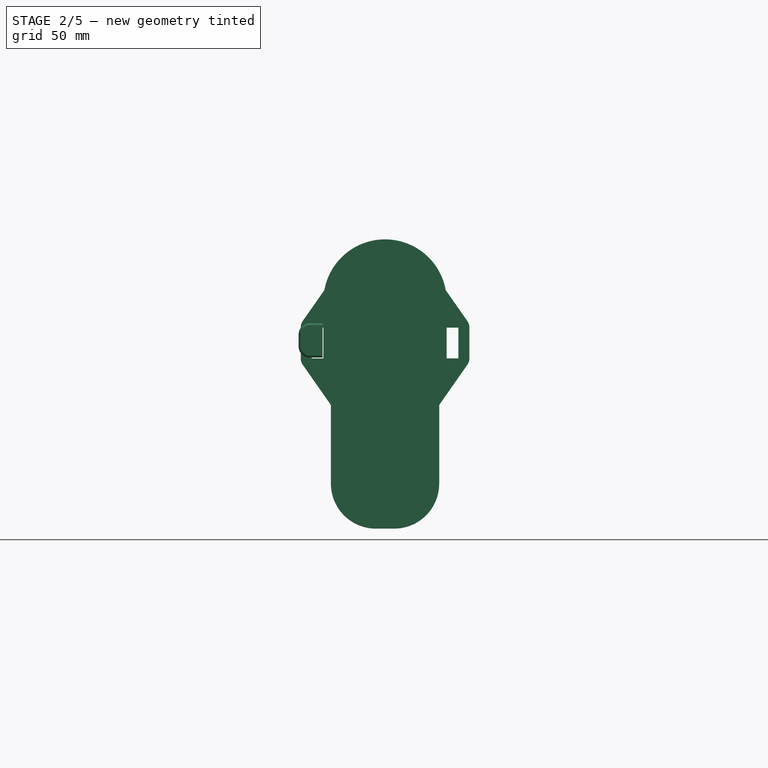
[diagram: stage 2 of 5 — front view after this stage's code; geometry added in this stage tinted green]
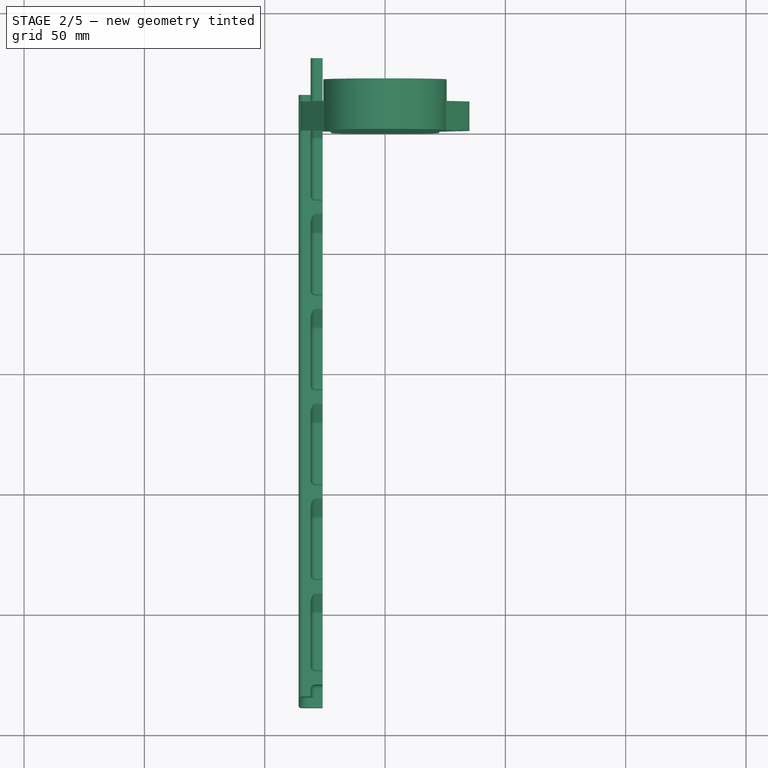
[diagram: stage 2 of 5 — top view after this stage's code; geometry added in this stage tinted green]
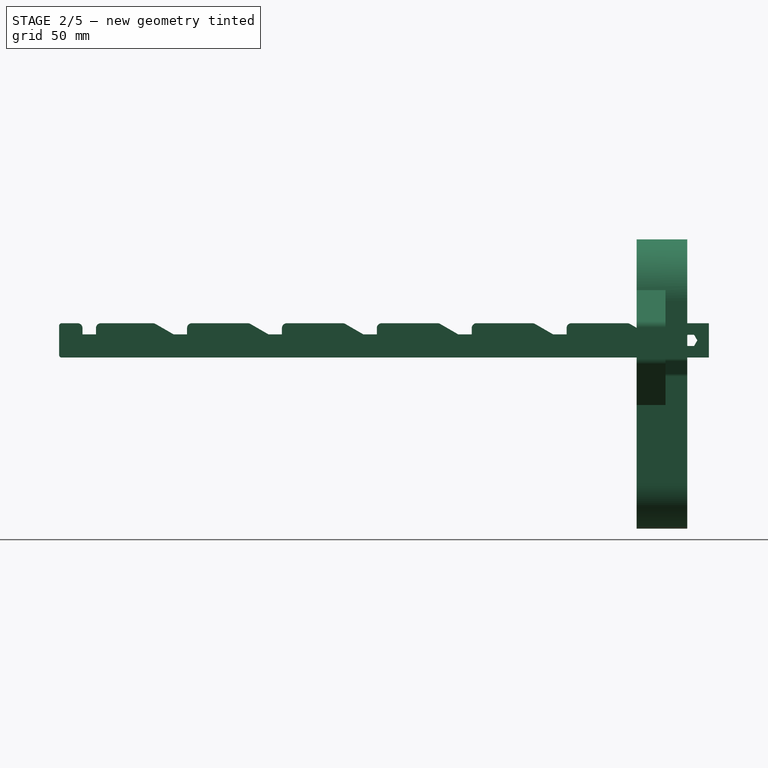
[diagram: stage 2 of 5 — right view after this stage's code; geometry added in this stage tinted green]
FEATURE [PartDesign::Body] Body002  label="TelescopingPad"
  Group = -> [Sketch008,Pad006,Sketch009,Pocket002,Sketch010,Pad007,Sketch011,Mirrored,Pocket003,Fillet,Fillet002,Sketch032,Pocket017,Fillet014,Sketch042,SubtractivePipe,Mirrored002,Sketch040,Sketch041,Pocket018,LinearPattern002,Pocket019,LinearPattern003]
  Origin = -> Origin002
  Placement = pos=(0,15,0) rot=(0,0,1;0rad)
  Tip = -> LinearPattern003
  expr: .Placement.Base.y = <<PadBodyPad>>.Length
FEATURE [Sketcher::SketchObject] Sketch043  label="DovetailLedgeSketch001"
  AttachmentOffset = pos=(0,0,4.8768) rot=(0,0,1;0rad)
  FullyConstrained = true
  MapMode = 5
  Placement = pos=(0,-4.8768,-1.1e-15) rot=(1,0,0;1.5708rad)
  Support = -> [XZ_Plane014]
  expr: Constraints[9] = <<P90Measurements001>>.ButtOverallHeight
  expr: Constraints[10] = <<P90Measurements001>>.DovetailLedgeWidestWidth - <<ProjectSettings001>>.LooseTolerance * 2
  expr: .AttachmentOffset.Base.z = <<P90Measurements001>>.DovetailHeight
  sketch-geometry (4):
    g0: LineSegment StartX=-17.45 StartY=120.218 StartZ=0 EndX=17.45 EndY=120.218 EndZ=0
    g1: LineSegment StartX=17.45 StartY=120.218 StartZ=0 EndX=17.45 EndY=0 EndZ=0
    g2: LineSegment StartX=17.45 StartY=0 StartZ=0 EndX=-17.45 EndY=0 EndZ=0
    g3: LineSegment StartX=-17.45 StartY=0 StartZ=0 EndX=-17.45 EndY=120.218 EndZ=0
  constraints (11):
    c: Coincident(g0,g1)
    c: Coincident(g1,g2)
    c: Coincident(g2,g3)
    c: Coincident(g3,g0)
    c: Horizontal(g0)
    c: Vertical(g1)
    c: Vertical(g3)
    c: PointOnObject(g1,g-1)
    c: Symmetric(g2,g1,g-2)
    c: DistanceY(g1,g1) = 120.218
    c: DistanceX(g0,g0) = 34.9
FEATURE [Sketcher::SketchObject] Sketch044  label="DovetailBodySketch001"
  FullyConstrained = true
  MapMode = 5
  Placement = pos=(0,0,0) rot=(1,0,0;1.5708rad)
  Support = -> [XZ_Plane014]
  expr: Constraints[9] = <<P90Measurements001>>.ButtOverallHeight
  expr: Constraints[10] = <<P90Measurements001>>.DovetailBodyWidth - <<ProjectSettings001>>.LooseTolerance * 2
  sketch-geometry (4):
    g0: LineSegment StartX=-13.7 StartY=120.218 StartZ=0 EndX=13.7 EndY=120.218 EndZ=0
    g1: LineSegment StartX=13.7 StartY=120.218 StartZ=0 EndX=13.7 EndY=0 EndZ=0
    g2: LineSegment StartX=13.7 StartY=0 StartZ=0 EndX=-13.7 EndY=0 EndZ=0
    g3: LineSegment StartX=-13.7 StartY=0 StartZ=0 EndX=-13.7 EndY=120.218 EndZ=0
  constraints (11):
    c: Coincident(g0,g1)
    c: Coincident(g1,g2)
    c: Coincident(g2,g3)
    c: Coincident(g3,g0)
    c: Horizontal(g0)
    c: Vertical(g1)
    c: Vertical(g3)
    c: PointOnObject(g1,g-1)
    c: Symmetric(g1,g2,g-2)
    c: DistanceY(g1,g1) = 120.218
    c: DistanceX(g0,g0) = 27.4
FEATURE [Sketcher::SketchObject] Sketch045  label="TelescoptingPadBodySketch001"
  FullyConstrained = true
  MapMode = 5
  Placement = pos=(0,0,0) rot=(1,0,0;1.5708rad)
  Support = -> [XZ_Plane013]
  expr: Constraints[27] = <<P90Measurements001>>.PadWidestWidthInnerShoulderDistanceFromReferencePoint
  expr: Constraints[22] = <<P90Measurements001>>.PadWidestWidthOuterShoulderDistanceFromReferencePoint
  expr: Constraints[19] = <<P90Measurements001>>.PadThinnestWidth
  expr: Constraints[21] = <<P90Measurements001>>.PadWidestWidth
  expr: Constraints[20] = <<P90Measurements001>>.ButtOverallHeight
  sketch-geometry (12):
    g0: LineSegment StartX=-22.5044 StartY=0 StartZ=0 EndX=22.5044 EndY=0 EndZ=0
    g1: LineSegment StartX=22.5044 StartY=0 StartZ=0 EndX=22.5044 EndY=63.2152 EndZ=0
    g2: LineSegment StartX=-22.5044 StartY=63.2152 StartZ=0 EndX=-22.5044 EndY=0 EndZ=0
    g3: LineSegment StartX=-25.6159 StartY=120.218 StartZ=0 EndX=25.6159 EndY=120.218 EndZ=0
    g4: LineSegment StartX=25.6159 StartY=120.218 StartZ=0 EndX=25.6159 EndY=70.739 EndZ=0
    g5: LineSegment StartX=-25.6159 StartY=70.739 StartZ=0 EndX=-25.6159 EndY=120.218 EndZ=0
    g6: LineSegment StartX=-25.3621 StartY=69.6414 StartZ=0 EndX=-22.7582 EndY=64.3128 EndZ=0
    g7: LineSegment StartX=25.3621 StartY=69.6414 StartZ=0 EndX=22.7582 EndY=64.3128 EndZ=0
    g8: ArcOfCircle CenterX=-23.1159 CenterY=70.739 CenterZ=0 NormalX=0 NormalY=0 NormalZ=1 AngleXU=0 Radius=2.5 StartAngle=3.14159 EndAngle=3.59612
    g9: ArcOfCircle CenterX=-25.0044 CenterY=63.2152 CenterZ=0 NormalX=0 NormalY=0 NormalZ=1 AngleXU=0 Radius=2.5 StartAngle=0 EndAngle=0.454529
    g10: ArcOfCircle CenterX=23.1159 CenterY=70.739 CenterZ=0 NormalX=0 NormalY=0 NormalZ=1 AngleXU=0 Radius=2.5 StartAngle=5.82866 EndAngle=6.28319
    g11: ArcOfCircle CenterX=25.0044 CenterY=63.2152 CenterZ=0 NormalX=0 NormalY=0 NormalZ=1 AngleXU=0 Radius=2.5 StartAngle=2.68706 EndAngle=3.14159
  constraints (29):
    c: Coincident(g0,g1)
    c: Coincident(g2,g0)
    c: Vertical(g1)
    c: Vertical(g2)
    c: PointOnObject(g0,g-1)
    c: Coincident(g3,g4)
    c: Coincident(g5,g3)
    c: Vertical(g4)
    c: Vertical(g5)
    c: Tangent(g8,g5) = 1.5708
    c: Tangent(g8,g6) = -1.5708
    c: Tangent(g9,g6) = 1.5708
    c: Tangent(g11,g1) = 1.5708
    c: Tangent(g11,g7) = -1.5708
    c: Tangent(g7,g10) = 1.5708
    c: Tangent(g10,g4) = 1.5708
    c: Tangent(g9,g2) = 1.5708
    c: Symmetric(g0,g0,g-2)
    c: Symmetric(g3,g3,g-2)
    c: DistanceX(g0,g0) = 45.0088
    c: DistanceY(g0,g3) = 120.218
    c: DistanceX(g3,g3) = 51.2318
    c: DistanceY(g-1,g8) = 70.739
    c: Symmetric(g7,g6,g-2)
    c: Symmetric(g6,g7,g-2)
    c: Equal(g11,g10)
    c: Diameter(g11) = 5
    c: DistanceY(g6) = 64.3128
    c: Angle(g1,g7) = 2.68706  'PadAngle'
FEATURE [Sketcher::SketchObject] Sketch046  label="DovetailLedgeCutSketch001"
  FullyConstrained = true
  MapMode = 5
  Placement = pos=(0,0,0) rot=(1,0,0;1.5708rad)
  Support = -> [XZ_Plane014]
  expr: Constraints[28] = <<P90Measurements001>>.ButtOverallHeight
  expr: Constraints[29] = <<P90Measurements001>>.DovetailLedgeWidestWidth - <<ProjectSettings001>>.LooseTolerance * 2
  expr: Constraints[32] = <<P90Measurements001>>.DovetailBodyWidth - <<ProjectSettings001>>.LooseTolerance * 2
  expr: Constraints[34] = <<P90Measurements001>>.DovetailMiddleWidthInsideShoulderDistanceFromReferencePoint
  expr: Constraints[36] = <<P90Measurements001>>.DovetailWidestLedgeStartingPointFromReferencePoint
  expr: Constraints[33] = <<P90Measurements001>>.DovetailLedgeMiddleWidth - <<ProjectSettings001>>.LooseTolerance * 2
  expr: Constraints[35] = <<P90Measurements001>>.DovetailMiddleWidthOutsideShoulderDistanceFromReferencePoint
  sketch-geometry (16):
    g0: LineSegment StartX=-27.45 StartY=130.218 StartZ=0 EndX=27.45 EndY=130.218 EndZ=0
    g1: LineSegment StartX=27.45 StartY=130.218 StartZ=0 EndX=27.45 EndY=-10 EndZ=0
    g2: LineSegment StartX=27.45 StartY=-10 StartZ=0 EndX=-27.45 EndY=-10 EndZ=0
    g3: LineSegment StartX=-27.45 StartY=-10 StartZ=0 EndX=-27.45 EndY=130.218 EndZ=0
    g4: LineSegment StartX=-13.7 StartY=0 StartZ=0 EndX=13.7 EndY=0 EndZ=0
    g5: LineSegment StartX=13.7 StartY=0 StartZ=0 EndX=13.7 EndY=9.398 EndZ=0
    g6: LineSegment StartX=13.7 StartY=9.398 StartZ=0 EndX=16.464 EndY=12.2936 EndZ=0
    g7: LineSegment StartX=16.464 StartY=12.2936 StartZ=0 EndX=16.464 EndY=81.8388 EndZ=0
    g8: LineSegment StartX=16.464 StartY=81.8388 StartZ=0 EndX=17.45 EndY=82.8598 EndZ=0
    g9: LineSegment StartX=17.45 StartY=82.8598 StartZ=0 EndX=17.45 EndY=120.218 EndZ=0
    g10: LineSegment StartX=17.45 StartY=120.218 StartZ=0 EndX=-17.45 EndY=120.218 EndZ=0
    g11: LineSegment StartX=-17.45 StartY=120.218 StartZ=0 EndX=-17.45 EndY=82.8598 EndZ=0
    g12: LineSegment StartX=-17.45 StartY=82.8598 StartZ=0 EndX=-16.464 EndY=81.8388 EndZ=0
    g13: LineSegment StartX=-16.464 StartY=81.8388 StartZ=0 EndX=-16.464 EndY=12.2936 EndZ=0
    g14: LineSegment StartX=-16.464 StartY=12.2936 StartZ=0 EndX=-13.7 EndY=9.398 EndZ=0
    g15: LineSegment StartX=-13.7 StartY=9.398 StartZ=0 EndX=-13.7 EndY=0 EndZ=0
  constraints (44):
    c: Coincident(g0,g1)
    c: Coincident(g1,g2)
    c: Coincident(g2,g3)
    c: Coincident(g3,g0)
    c: Horizontal(g0)
    c: Horizontal(g2)
    c: Vertical(g1)
    c: Vertical(g3)
    c: PointOnObject(g4,g-1)
    c: Coincident(g4,g5)
    c: Vertical(g5)
    c: Coincident(g5,g6)
    c: Coincident(g6,g7)
    c: Vertical(g7)
    c: Coincident(g7,g8)
    c: Coincident(g8,g9)
    c: Vertical(g9)
    c: Coincident(g9,g10)
    c: Coincident(g10,g11)
    c: Coincident(g11,g12)
    c: Coincident(g12,g13)
    c: Vertical(g13)
    c: Coincident(g13,g14)
    c: Coincident(g14,g15)
    c: Coincident(g15,g4)
    c: Vertical(g15)
    c: Horizontal(g14,g5)
    c: Horizontal(g13,g6)
    c: DistanceY(g4,g9) = 120.218
    c: DistanceX(g10,g10) = 34.9
    c: Symmetric(g10,g9,g-2)
    c: Symmetric(g12,g7,g-2)
    c: DistanceX(g4,g4) = 27.4
    c: DistanceX(g12,g7) = 32.928
    c: DistanceY(g14) = 9.398
    c: DistanceY(g4,g13) = 12.2936
    c: DistanceY(g-1,g7) = 81.8388
    c: DistanceY(g10,g0) = 10
    c: DistanceX(g0,g10) = 10
    c: DistanceX(g9,g1) = 10
    c: DistanceY(g1,g4) = 10
    c: Symmetric(g4,g4,g-2)
    c: Symmetric(g8,g11,g-2)
    c: Angle(g12,g13) = 2.37365
FEATURE [Sketcher::SketchObject] Sketch047  label="PadBodySketch001"
  FullyConstrained = true
  MapMode = 5
  Placement = pos=(0,0,0) rot=(1,0,0;1.5708rad)
  Support = -> [XZ_Plane014]
  expr: Constraints[20] = <<P90Measurements001>>.ButtOverallHeight
  expr: Constraints[21] = <<P90Measurements001>>.PadWidestWidth
  expr: Constraints[19] = <<P90Measurements001>>.PadThinnestWidth
  expr: Constraints[22] = <<P90Measurements001>>.PadWidestWidthOuterShoulderDistanceFromReferencePoint
  expr: Constraints[27] = <<P90Measurements001>>.PadWidestWidthInnerShoulderDistanceFromReferencePoint
  sketch-geometry (12):
    g0: LineSegment StartX=-22.5044 StartY=0 StartZ=0 EndX=22.5044 EndY=0 EndZ=0
    g1: LineSegment StartX=22.5044 StartY=0 StartZ=0 EndX=22.5044 EndY=63.2152 EndZ=0
    g2: LineSegment StartX=-22.5044 StartY=63.2152 StartZ=0 EndX=-22.5044 EndY=0 EndZ=0
    g3: LineSegment StartX=-25.6159 StartY=120.218 StartZ=0 EndX=25.6159 EndY=120.218 EndZ=0
    g4: LineSegment StartX=25.6159 StartY=120.218 StartZ=0 EndX=25.6159 EndY=70.739 EndZ=0
    g5: LineSegment StartX=-25.6159 StartY=70.739 StartZ=0 EndX=-25.6159 EndY=120.218 EndZ=0
    g6: LineSegment StartX=-25.3621 StartY=69.6414 StartZ=0 EndX=-22.7582 EndY=64.3128 EndZ=0
    g7: LineSegment StartX=25.3621 StartY=69.6414 StartZ=0 EndX=22.7582 EndY=64.3128 EndZ=0
    g8: ArcOfCircle CenterX=-23.1159 CenterY=70.739 CenterZ=0 NormalX=0 NormalY=0 NormalZ=1 AngleXU=0 Radius=2.5 StartAngle=3.14159 EndAngle=3.59612
    g9: ArcOfCircle CenterX=-25.0044 CenterY=63.2152 CenterZ=0 NormalX=0 NormalY=0 NormalZ=1 AngleXU=0 Radius=2.5 StartAngle=2e-16 EndAngle=0.454529
    g10: ArcOfCircle CenterX=23.1159 CenterY=70.739 CenterZ=0 NormalX=0 NormalY=0 NormalZ=1 AngleXU=0 Radius=2.5 StartAngle=5.82866 EndAngle=6.28319
    g11: ArcOfCircle CenterX=25.0044 CenterY=63.2152 CenterZ=0 NormalX=0 NormalY=0 NormalZ=1 AngleXU=0 Radius=2.5 StartAngle=2.68706 EndAngle=3.14159
  constraints (28):
    c: Coincident(g0,g1)
    c: Coincident(g2,g0)
    c: Vertical(g1)
    c: Vertical(g2)
    c: PointOnObject(g0,g-1)
    c: Coincident(g3,g4)
    c: Coincident(g5,g3)
    c: Vertical(g4)
    c: Vertical(g5)
    c: Tangent(g8,g5) = 1.5708
    c: Tangent(g8,g6) = -1.5708
    c: Tangent(g9,g6) = 1.5708
    c: Tangent(g11,g1) = 1.5708
    c: Tangent(g11,g7) = -1.5708
    c: Tangent(g7,g10) = 1.5708
    c: Tangent(g10,g4) = 1.5708
    c: Tangent(g9,g2) = 1.5708
    c: Symmetric(g0,g0,g-2)
    c: Symmetric(g3,g3,g-2)
    c: DistanceX(g0,g0) = 45.0088
    c: DistanceY(g0,g3) = 120.218
    c: DistanceX(g3,g3) = 51.2318
    c: DistanceY(g-1,g8) = 70.739
    c: Symmetric(g7,g6,g-2)
    c: Symmetric(g6,g7,g-2)
    c: Equal(g11,g10)
    c: Diameter(g11) = 5
    c: DistanceY(g6) = 64.3128
FEATURE [Sketcher::SketchObject] Sketch048  label="TelescopingBarInsertArmSketch001"
  FullyConstrained = true
  MapMode = 5
  Placement = pos=(0,0,0) rot=(1,0,0;1.5708rad)
  Support = -> [XZ_Plane013]
  expr: Constraints[11] = <<ProjectSettings001>>.BarThickness + <<ProjectSettings001>>.TightTolerance
  expr: Constraints[12] = <<P90Measurements001>>.PadWidestWidthOuterShoulderDistanceFromReferencePoint
  expr: Constraints[10] = <<P90Measurements001>>.PadWidestWidth / 2
  expr: Constraints[13] = <<ProjectSettings001>>.BarHeight + <<ProjectSettings001>>.TightTolerance
  expr: Constraints[15] = <<P90Measurements001>>.PadThinnestWidth / 2
  sketch-geometry (10):
    g0: LineSegment StartX=30.4784 StartY=70.739 StartZ=0 EndX=30.4784 EndY=83.539 EndZ=0
    g1: LineSegment StartX=30.4784 StartY=83.539 StartZ=0 EndX=25.6159 EndY=83.539 EndZ=0
    g2: LineSegment StartX=25.6159 StartY=83.539 StartZ=0 EndX=25.6159 EndY=70.739 EndZ=0
    g3: LineSegment StartX=25.6159 StartY=70.739 StartZ=0 EndX=30.4784 EndY=70.739 EndZ=0
    g4: LineSegment StartX=35.0484 StartY=70.739 StartZ=0 EndX=35.0484 EndY=83.639 EndZ=0
    g5: LineSegment StartX=22.5044 StartY=102.995 StartZ=0 EndX=22.5044 EndY=51.3834 EndZ=0
    g6: ArcOfCircle CenterX=30.4784 CenterY=70.739 CenterZ=0 NormalX=0 NormalY=0 NormalZ=1 AngleXU=0 Radius=4.57 StartAngle=5.67232 EndAngle=6.28319
    g7: LineSegment StartX=22.5044 StartY=51.3834 StartZ=0 EndX=34.2219 EndY=68.1178 EndZ=0
    g8: LineSegment StartX=22.5044 StartY=102.995 StartZ=0 EndX=34.2219 EndY=86.2602 EndZ=0
    g9: ArcOfCircle CenterX=30.4784 CenterY=83.639 CenterZ=0 NormalX=0 NormalY=0 NormalZ=1 AngleXU=0 Radius=4.57 StartAngle=-9e-16 EndAngle=0.610865
  constraints (28):
    c: Vertical(g0)
    c: Coincident(g0,g1)
    c: Horizontal(g1)
    c: Coincident(g1,g2)
    c: Vertical(g2)
    c: Coincident(g2,g3)
    c: Coincident(g3,g0)
    c: Vertical(g5)
    c: Vertical(g4)
    c: Horizontal(g3)
    c: DistanceX(g-1,g2) = 25.6159
    c: DistanceX(g1,g1) = 4.8625
    c: DistanceY(g-1,g2) = 70.739
    c: DistanceY(g0,g0) = 12.8
    c: Coincident(g6,g0)
    c: DistanceX(g-1,g5) = 22.5044
    c: Coincident(g7,g5)
    c: Coincident(g8,g5)
    c: Tangent(g6,g4) = -1.5708
    c: Tangent(g7,g6) = -1.5708
    c: Equal(g7,g8)
    c: Angle(g4,g7) = 2.53073
    c: DistanceX(g-1,g4) = 35.0484  'DistanceFromCenterlineToOutsideOfBarInsertArm'
    c: PointOnObject(g9,g0)
    c: DistanceY(g0,g9) = 0.1
    c: Tangent(g9,g8) = 1.5708
    c: Tangent(g9,g4) = -1.5708
    c: Diameter(g9) = 9.14
FEATURE [Sketcher::SketchObject] Sketch049  label="TelescopingPadBevelsCutSketch001"
  FullyConstrained = true
  MapMode = 5
  Placement = pos=(0,0,0) rot=(1,0,0;1.5708rad)
  Support = -> [XZ_Plane013]
  expr: Constraints[32] = <<P90Measurements001>>.PadBottomWidth
  expr: Constraints[29] = <<P90Measurements001>>.PadWidestWidth
  expr: Constraints[31] = <<P90Measurements001>>.PadWidestWidthInnerShoulderDistanceFromReferencePoint - 5mm
  expr: Constraints[30] = <<P90Measurements001>>.PadThinnestWidth
  expr: Constraints[27] = <<P90Measurements001>>.ButtOverallHeight
  sketch-geometry (15):
    g0: LineSegment StartX=-35.6159 StartY=130.218 StartZ=0 EndX=35.6159 EndY=130.218 EndZ=0
    g1: LineSegment StartX=35.6159 StartY=130.218 StartZ=0 EndX=35.6159 EndY=-10 EndZ=0
    g2: LineSegment StartX=35.6159 StartY=-10 StartZ=0 EndX=-35.6159 EndY=-10 EndZ=0
    g3: LineSegment StartX=-35.6159 StartY=-10 StartZ=0 EndX=-35.6159 EndY=130.218 EndZ=0
    g4: ArcOfCircle CenterX=-3.81 CenterY=18.6944 CenterZ=0 NormalX=0 NormalY=0 NormalZ=1 AngleXU=0 Radius=18.6944 StartAngle=3.14159 EndAngle=4.71239
    g5: ArcOfCircle CenterX=3.81 CenterY=18.6944 CenterZ=0 NormalX=0 NormalY=0 NormalZ=1 AngleXU=0 Radius=18.6944 StartAngle=4.71239 EndAngle=6.28319
    g6: ArcOfCircle CenterX=8e-16 CenterY=94.6023 CenterZ=0 NormalX=0 NormalY=0 NormalZ=1 AngleXU=0 Radius=25.6159 StartAngle=1.5708 EndAngle=3.14159
    g7: ArcOfCircle CenterX=8e-16 CenterY=94.6023 CenterZ=0 NormalX=0 NormalY=0 NormalZ=1 AngleXU=0 Radius=25.6159 StartAngle=0 EndAngle=1.5708
    g8: LineSegment StartX=-25.6159 StartY=94.6023 StartZ=0 EndX=-25.6159 EndY=59.3128 EndZ=0
    g9: LineSegment StartX=-25.6159 StartY=59.3128 StartZ=0 EndX=-22.5044 EndY=59.3128 EndZ=0
    g10: LineSegment StartX=-22.5044 StartY=59.3128 StartZ=0 EndX=-22.5044 EndY=18.6944 EndZ=0
    g11: LineSegment StartX=-3.81 StartY=0 StartZ=0 EndX=3.81 EndY=0 EndZ=0
    g12: LineSegment StartX=22.5044 StartY=18.6944 StartZ=0 EndX=22.5044 EndY=59.3128 EndZ=0
    g13: LineSegment StartX=22.5044 StartY=59.3128 StartZ=0 EndX=25.6159 EndY=59.3128 EndZ=0
    g14: LineSegment StartX=25.6159 StartY=59.3128 StartZ=0 EndX=25.6159 EndY=94.6023 EndZ=0
  constraints (39):
    c: Coincident(g0,g1)
    c: Coincident(g1,g2)
    c: Coincident(g2,g3)
    c: Coincident(g3,g0)
    c: Horizontal(g0)
    c: Vertical(g1)
    c: Vertical(g3)
    c: Symmetric(g2,g1,g-2)
    c: PointOnObject(g4,g-1)
    c: PointOnObject(g5,g-1)
    c: Vertical(g8)
    c: Coincident(g9,g8)
    c: Vertical(g10)
    c: Vertical(g12)
    c: Coincident(g13,g12)
    c: Vertical(g14)
    c: Coincident(g13,g14)
    c: Horizontal(g13)
    c: Tangent(g6,g8) = -1.5708
    c: Tangent(g7,g14) = -1.5708
    c: Tangent(g10,g4) = -1.5708
    c: Tangent(g11,g4) = -1.5708
    c: Tangent(g11,g5) = -1.5708
    c: Tangent(g12,g5) = -1.5708
    c: Symmetric(g12,g10,g-2)
    c: Symmetric(g8,g13,g-2)
    c: Coincident(g10,g9)
    c: DistanceY(g-1,g7) = 120.218
    c: Equal(g5,g4)
    c: DistanceX(g6,g7) = 51.2318
    c: DistanceX(g9,g12) = 45.0088
    c: DistanceY(g-1,g12) = 59.3128
    c: DistanceX(g11,g11) = 7.62
    c: PointOnObject(g6,g-2)
    c: Tangent(g6,g7) = -1.5708
    c: Equal(g8,g14)
    c: DistanceY(g2,g-1) = 10
    c: DistanceY(g6,g0) = 10
    c: DistanceX(g7,g1) = 10
FEATURE [Sketcher::SketchObject] Sketch050  label="CrosspinHoleSketch001"
  FullyConstrained = true
  MapMode = 5
  Placement = pos=(0,0,0) rot=(0.57735,0.57735,0.57735;2.0944rad)
  Support = -> [YZ_Plane012]
  expr: Constraints[1] = <<TelescopingPadSettings001>>.TelescopingBarInsertDepth / 2 + <<ProjectSettings001>>.TightTolerance * 2
  expr: Constraints[0] = <<P90Measurements001>>.PadWidestWidthOuterShoulderDistanceFromReferencePoint + <<ProjectSettings001>>.BarHeight / 2 + <<ProjectSettings001>>.TightTolerance
  expr: Constraints[2] = <<ProjectSettings001>>.CrosspinWidth
  sketch-geometry (1):
    g0: Circle CenterX=5.8875 CenterY=77.189 CenterZ=0 NormalX=0 NormalY=0 NormalZ=1 AngleXU=0 Radius=2
  constraints (3):
    c: DistanceY(g-1,g0) = 77.189
    c: DistanceX(g-1,g0) = 5.8875
    c: Diameter(g0) = 4
FEATURE [Sketcher::SketchObject] Sketch051  label="PaperworkLidWallAndNubSketch"
  AttachmentOffset = pos=(0,0,60.1091) rot=(0,0,1;0rad)
  FullyConstrained = true
  MapMode = 5
  Placement = pos=(0,0,60.1091) rot=(0,0,1;0rad)
  Support = -> [XY_Plane011]
  expr: Constraints[8] = <<ProjectSettings001>>.PaperworkLidNubWidth
  expr: Constraints[10] = <<PadLightningCutPocket>>.Length - <<ProjectSettings001>>.LooseTolerance - 2mm
  expr: Constraints[6] = (<<P90Measurements001>>.PadWidestWidth - <<ProjectSettings001>>.TelescopingPadComfortFilletRadius * 3 - <<ProjectSettings001>>.LooseTolerance * 2) / 2
  expr: .AttachmentOffset.Base.z = <<P90Measurements001>>.ButtOverallHeight / 2
  expr: Constraints[9] = <<ProjectSettings001>>.PaperworkLidNubHeight
  expr: Constraints[14] = <<ProjectSettings001>>.PaperworklidbaseThickness
  expr: Constraints[17] = <<ProjectSettings001>>.PaperworkLidWallThickness
  expr: Constraints[19] = <<ProjectSettings001>>.PaperworkLipTabWallFilletRadius
  expr: Constraints[20] = 110
  sketch-geometry (7):
    g0: LineSegment StartX=-17.8159 StartY=0 StartZ=0 EndX=-17.8159 EndY=10.7 EndZ=0
    g1: LineSegment StartX=-17.8159 StartY=10.7 StartZ=0 EndX=-19.3159 EndY=11.7 EndZ=0
    g2: LineSegment StartX=-19.3159 StartY=11.7 StartZ=0 EndX=-17.8159 EndY=12.7 EndZ=0
    g3: LineSegment StartX=-17.8159 StartY=12.7 StartZ=0 EndX=-15.8159 EndY=12.7 EndZ=0
    g4: ArcOfCircle CenterX=-8.9386 CenterY=5.5 CenterZ=0 NormalX=0 NormalY=0 NormalZ=1 AngleXU=0 Radius=4 StartAngle=3.49066 EndAngle=4.71239
    g5: LineSegment StartX=-12.6974 StartY=4.13192 StartZ=0 EndX=-15.8159 EndY=12.7 EndZ=0
    g6: LineSegment StartX=-17.8159 StartY=0 StartZ=0 EndX=-8.9386 EndY=1.5 EndZ=0
  constraints (21):
    c: PointOnObject(g0,g-1)
    c: Vertical(g0)
    c: Coincident(g0,g1)
    c: Coincident(g1,g2)
    c: Coincident(g2,g3)
    c: Horizontal(g3)
    c: DistanceX(g0,g-1) = 17.8159
    c: Equal(g1,g2)
    c: DistanceY(g0,g2) = 2
    c: DistanceX(g1,g0) = 1.5
    c: DistanceY(g-1,g3) = 12.7
    c: Vertical(g2,g0)
    c: Coincident(g5,g3)
    c: Tangent(g5,g4) = 1.5708
    c: DistanceY(g6,g4) = 1.5
    c: Vertical(g4,g4)
    c: Coincident(g6,g4)
    c: DistanceX(g3,g3) = 2
    c: Coincident(g6,g0)
    c: Radius(g4) = 4
    c: Angle(g3,g5) = 1.91986
FEATURE [Sketcher::SketchObject] Sketch052  label="PaperworkLidCrosspinSlotSketch"
  FullyConstrained = true
  MapMode = 5
  Placement = pos=(0,0,0) rot=(0.57735,0.57735,0.57735;2.0944rad)
  Support = -> [YZ_Plane011]
  expr: Constraints[14] = <<ProjectSettings001>>.StandardFillet
  expr: Constraints[0] = <<P90Measurements001>>.PadWidestWidthOuterShoulderDistanceFromReferencePoint + <<ProjectSettings001>>.BarHeight / 2 + <<ProjectSettings001>>.TightTolerance
  expr: Constraints[1] = <<TelescopingPadSettings001>>.TelescopingBarInsertDepth / 2 + <<ProjectSettings001>>.TightTolerance * 2
  expr: Constraints[2] = <<ProjectSettings001>>.CrosspinWidth + <<ProjectSettings001>>.LooseTolerance * 2
  expr: Constraints[8] = <<LightningCutPocket>>.Length
  sketch-geometry (10):
    g0: ArcOfCircle CenterX=5.8875 CenterY=77.189 CenterZ=0 NormalX=0 NormalY=0 NormalZ=1 AngleXU=0 Radius=2.3 StartAngle=1.5708 EndAngle=4.71239
    g1: LineSegment StartX=5.8875 StartY=79.489 StartZ=0 EndX=10 EndY=79.489 EndZ=0
    g2: LineSegment StartX=12 StartY=79.489 StartZ=0 EndX=12 EndY=74.889 EndZ=0
    g3: LineSegment StartX=10 StartY=74.889 StartZ=0 EndX=5.8875 EndY=74.889 EndZ=0
    g4: LineSegment StartX=12 StartY=79.489 StartZ=0 EndX=12 EndY=81.489 EndZ=0
    g5: ArcOfCircle CenterX=10 CenterY=81.489 CenterZ=0 NormalX=0 NormalY=0 NormalZ=1 AngleXU=0 Radius=2 StartAngle=4.71239 EndAngle=6.28319
    g6: GeomPoint X=12 Y=79.489 Z=0
    g7: LineSegment StartX=12 StartY=74.889 StartZ=0 EndX=12 EndY=72.889 EndZ=0
    g8: ArcOfCircle CenterX=10 CenterY=72.889 CenterZ=0 NormalX=0 NormalY=0 NormalZ=1 AngleXU=0 Radius=2 StartAngle=-2.7e-15 EndAngle=1.5708
    g9: GeomPoint X=12 Y=74.889 Z=0
  constraints (25):
    c: DistanceY(g-1,g0) = 77.189
    c: DistanceX(g-1,g0) = 5.8875
    c: Diameter(g0) = 4.6
    c: Coincident(g6,g2)
    c: Coincident(g2,g9)
    c: Horizontal(g1)
    c: Horizontal(g3)
    c: Vertical(g2)
    c: DistanceX(g-1,g6) = 12
    c: Vertical(g3,g0)
    c: Coincident(g0,g1)
    c: Coincident(g0,g3)
    c: Vertical(g0,g0)
    c: Vertical(g4)
    c: DistanceY(g6,g4) = 2
    c: PointOnObject(g6,g1)
    c: Tangent(g1,g5) = -1.5708
    c: Coincident(g4,g2)
    c: Tangent(g5,g4) = -1.5708
    c: Vertical(g7)
    c: PointOnObject(g9,g3)
    c: Tangent(g3,g8) = -1.5708
    c: Coincident(g7,g2)
    c: Tangent(g8,g7) = 1.5708
    c: Equal(g8,g5)
FEATURE [Sketcher::SketchObject] Sketch053  label="PaperworkLidMainSketch"
  FullyConstrained = true
  MapMode = 5
  Placement = pos=(0,0,0) rot=(1,0,0;1.5708rad)
  Support = -> [XZ_Plane012]
  expr: Constraints[2] = <<P90Measurements001>>.PadWidestWidth - <<ProjectSettings001>>.TelescopingPadComfortFilletRadius * 3 - <<ProjectSettings001>>.LooseTolerance * 2
  expr: Constraints[5] = <<P90Measurements001>>.ButtOverallHeight - <<ProjectSettings001>>.WallThickness * 2 - <<ProjectSettings001>>.LooseTolerance
  expr: Constraints[11] = <<ProjectSettings001>>.WallThickness * 2 + <<ProjectSettings001>>.LooseTolerance
  sketch-geometry (6):
    g0: ArcOfCircle CenterX=1e-15 CenterY=26.1159 CenterZ=0 NormalX=0 NormalY=0 NormalZ=1 AngleXU=0 Radius=17.8159 StartAngle=3.14159 EndAngle=4.71239
    g1: LineSegment StartX=17.8159 StartY=26.1159 StartZ=0 EndX=17.8159 EndY=94.1023 EndZ=0
    g2: LineSegment StartX=-17.8159 StartY=26.1159 StartZ=0 EndX=-17.8159 EndY=94.1023 EndZ=0
    g3: ArcOfCircle CenterX=-4.4e-15 CenterY=94.1023 CenterZ=0 NormalX=0 NormalY=0 NormalZ=1 AngleXU=0 Radius=17.8159 StartAngle=1.5708 EndAngle=3.14159
    g4: ArcOfCircle CenterX=-4.4e-15 CenterY=94.1023 CenterZ=0 NormalX=0 NormalY=0 NormalZ=1 AngleXU=0 Radius=17.8159 StartAngle=0 EndAngle=1.5708
    g5: ArcOfCircle CenterX=1e-15 CenterY=26.1159 CenterZ=0 NormalX=0 NormalY=0 NormalZ=1 AngleXU=0 Radius=17.8159 StartAngle=4.71239 EndAngle=6.28319
  constraints (15):
    c: Vertical(g2)
    c: Vertical(g1)
    c: DistanceX(g2,g1) = 35.6318
    c: Tangent(g2,g3) = 1.5708
    c: Tangent(g1,g4) = -1.5708
    c: DistanceY(g-1,g3) = 111.918
    c: Tangent(g4,g3) = -1.5708
    c: PointOnObject(g3,g-2)
    c: Symmetric(g2,g1,g-2)
    c: Tangent(g1,g5) = -1.5708
    c: Tangent(g0,g2) = 1.5708
    c: DistanceY(g-1,g5) = 8.3
    c: Tangent(g0,g5) = -1.5708
    c: PointOnObject(g0,g-2)
    c: Horizontal(g0,g1)
FEATURE [Sketcher::SketchObject] Sketch054  label="PaperworkLidFingerHoleSketch"
  AttachmentOffset = pos=(0,0,60.1091) rot=(0,0,1;0rad)
  FullyConstrained = false
  MapMode = 5
  Placement = pos=(0,0,60.1091) rot=(0,0,1;0rad)
  Support = -> [XY_Plane011]
  expr: Constraints[6] = <<ProjectSettings001>>.PaperworklidbaseThickness
  expr: Constraints[7] = <<ProjectSettings001>>.PaperworkLidFingerHoleDiameter / 2
  expr: .AttachmentOffset.Base.z = <<P90Measurements001>>.ButtOverallHeight / 2
  sketch-geometry (7):
    g0: LineSegment StartX=0 StartY=0 StartZ=0 EndX=10 EndY=0 EndZ=0
    g1: LineSegment StartX=10 StartY=1.5 StartZ=0 EndX=0 EndY=1.5 EndZ=0
    g2: LineSegment StartX=0 StartY=1.5 StartZ=0 EndX=0 EndY=0 EndZ=0
    g3: ArcOfCircle CenterX=10 CenterY=0.75 CenterZ=0 NormalX=0 NormalY=0 NormalZ=1 AngleXU=0 Radius=0.75 StartAngle=1.5708 EndAngle=4.71239
    g4: LineSegment StartX=0 StartY=1.5 StartZ=0 EndX=0 EndY=8.15565 EndZ=0
    g5: LineSegment StartX=0 StartY=8.15565 StartZ=0 EndX=10 EndY=8.15565 EndZ=0
    g6: LineSegment StartX=10 StartY=8.15565 StartZ=0 EndX=10 EndY=1.5 EndZ=0
  constraints (19):
    c: Coincident(g1,g2)
    c: Coincident(g2,g0)
    c: Horizontal(g0)
    c: Horizontal(g1)
    c: Vertical(g2)
    c: Coincident(g0,g-1)
    c: DistanceY(g2,g2) = 1.5
    c: DistanceX(g1,g1) = 10
    c: Coincident(g3,g1)
    c: Coincident(g3,g0)
    c: Vertical(g3,g0)
    c: Vertical(g0,g1)
    c: Coincident(g1,g4)
    c: PointOnObject(g4,g-2)
    c: Coincident(g4,g5)
    c: Horizontal(g5)
    c: Coincident(g5,g6)
    c: Vertical(g6)
    c: Coincident(g6,g1)
FEATURE [Sketcher::SketchObject] Sketch029  label="LightningCutSketch"
  FullyConstrained = true
  MapMode = 5
  Placement = pos=(0,0,0) rot=(1,0,0;1.5708rad)
  Support = -> [XZ_Plane013]
  expr: Constraints[11] = <<ProjectSettings001>>.WallThickness * 2
  expr: Constraints[5] = <<P90Measurements001>>.ButtOverallHeight - <<ProjectSettings001>>.WallThickness * 2
  expr: Constraints[2] = <<P90Measurements001>>.PadWidestWidth - <<ProjectSettings001>>.TelescopingPadComfortFilletRadius * 3
  sketch-geometry (6):
    g0: ArcOfCircle CenterX=-1.1391e-12 CenterY=26.1159 CenterZ=0 NormalX=0 NormalY=0 NormalZ=1 AngleXU=0 Radius=18.1159 StartAngle=3.14159 EndAngle=4.71239
    g1: LineSegment StartX=18.1159 StartY=26.1159 StartZ=0 EndX=18.1159 EndY=94.1023 EndZ=0
    g2: LineSegment StartX=-18.1159 StartY=26.1159 StartZ=0 EndX=-18.1159 EndY=94.1023 EndZ=0
    g3: ArcOfCircle CenterX=-6.2e-15 CenterY=94.1023 CenterZ=0 NormalX=0 NormalY=0 NormalZ=1 AngleXU=0 Radius=18.1159 StartAngle=1.5708 EndAngle=3.14159
    g4: ArcOfCircle CenterX=-6.2e-15 CenterY=94.1023 CenterZ=0 NormalX=0 NormalY=0 NormalZ=1 AngleXU=0 Radius=18.1159 StartAngle=0 EndAngle=1.5708
    g5: ArcOfCircle CenterX=2.401e-13 CenterY=26.1159 CenterZ=0 NormalX=0 NormalY=0 NormalZ=1 AngleXU=0 Radius=18.1159 StartAngle=4.71239 EndAngle=6.28319
  constraints (15):
    c: Vertical(g2)
    c: Vertical(g1)
    c: DistanceX(g2,g1) = 36.2318
    c: Tangent(g2,g3) = 1.5708
    c: Tangent(g1,g4) = -1.5708
    c: DistanceY(g-1,g3) = 112.218
    c: Tangent(g4,g3) = -1.5708
    c: PointOnObject(g3,g-2)
    c: Symmetric(g2,g1,g-2)
    c: Tangent(g1,g5) = -1.5708
    c: Tangent(g0,g2) = 1.5708
    c: DistanceY(g-1,g5) = 8
    c: Tangent(g0,g5) = -1.5708
    c: PointOnObject(g0,g-2)
    c: Horizontal(g0,g1)
FEATURE [PartDesign::Pad] Pad015  label="TelescoptingPadBodyPad001"
  Direction = (1,1,1)
  Length = 21
  Length2 = 100
  Placement = pos=(0,0,0) rot=(1,0,0;1.5708rad)
  Profile = -> Sketch045
  Reversed = true
  Type = 0
  expr: Length = <<ProjectSettings001>>.TelescopingBarInsertDepth + <<ProjectSettings001>>.WallThickness + <<ProjectSettings001>>.TelescopingPadComfortFilletRadius
FEATURE [PartDesign::Pad] Pad016  label="DovetailBodyPad001"
  Direction = (1,1,1)
  Length = 4.8768
  Length2 = 100
  Placement = pos=(0,0,0) rot=(1,0,0;1.5708rad)
  Profile = -> Sketch044
  Type = 0
  expr: Length = <<P90Measurements001>>.DovetailHeight
FEATURE [PartDesign::Pad] Pad017  label="DovetailLedgePad001"
  BaseFeature = -> Pad016
  Direction = (1,1,1)
  Length = 2.24
  Length2 = 100
  Placement = pos=(0,0,0) rot=(1,0,0;1.5708rad)
  Profile = -> Sketch043
  Refine = true
  Reversed = true
  Type = 0
  expr: Length = <<P90Measurements001>>.DovetailLedgeHeight - <<ProjectSettings001>>.LooseTolerance
FEATURE [PartDesign::Body] Body008  label="PaperworkLid"
  Group = -> [Sketch053,Pad020,Sketch051,AdditivePipe,Mirrored004,Sketch052,Pocket024,Sketch054,Groove]
  Origin = -> Origin011
  Placement = pos=(0,18,0) rot=(0,0,1;0rad)
  Tip = -> Groove
  expr: .Placement.Base.y = <<PadBodyPad001>>.Length
FEATURE [PartDesign::Pocket] Pocket025  label="TelescopingPadBevelsCutPocket001"
  BaseFeature = -> Pad015
  Length = 5
  Length2 = 100
  Midplane = true
  Placement = pos=(0,0,0) rot=(1,0,0;1.5708rad)
  Profile = -> Sketch049
  Type = 1
FEATURE [PartDesign::Pad] Pad019  label="TelescopingBarInsertArmPad001"
  BaseFeature = -> Pocket025
  Direction = (1,1,1)
  Length = 12
  Length2 = 100
  Placement = pos=(0,0,0) rot=(1,0,0;1.5708rad)
  Profile = -> Sketch048
  Reversed = true
  Type = 0
  expr: Length = <<ProjectSettings001>>.TelescopingBarInsertDepth
FEATURE [PartDesign::Mirrored] Mirrored003  label="TelescopingBarInsertArmMirror001"
  BaseFeature = -> Pad019
  MirrorPlane = -> Sketch048 [V_Axis]
  Originals = -> [Pad019]
  Placement = pos=(0,0,0) rot=(1,0,0;1.5708rad)
FEATURE [PartDesign::Pocket] Pocket026  label="DovetailLedgeCutPocket001"
  BaseFeature = -> Pad017
  Length = 5
  Length2 = 100
  Placement = pos=(0,0,0) rot=(1,0,0;1.5708rad)
  Profile = -> Sketch046
  Reversed = true
  Type = 1
FEATURE [PartDesign::Pad] Pad018  label="PadBodyPad001"
  BaseFeature = -> Pocket026
  Direction = (1,1,1)
  Length = 18
  Length2 = 100
  Placement = pos=(0,0,0) rot=(1,0,0;1.5708rad)
  Profile = -> Sketch047
  Reversed = true
  Type = 0
  expr: Length = <<ProjectSettings001>>.WallThickness * 2 + <<ProjectSettings001>>.LockingButtonHeight
FEATURE [PartDesign::Pocket] Pocket027  label="CrosspinHolePocket001"
  BaseFeature = -> Mirrored003
  Length = 5
  Length2 = 100
  Midplane = true
  Placement = pos=(0,0,0) rot=(1,0,0;1.5708rad)
  Profile = -> Sketch050
  Type = 1
FEATURE [Spreadsheet::Sheet] Spreadsheet005  label="P90Measurements001"
  cells = A1=ButtDovetail; D1=Overall; G1=ButtPad; I1=Reference Point; J1=Bottom of pad, just at base of dovetail body; L1=SpaceForTelescopingBar; M1(SpaceForTelescopingBar)==0.584"; A2=DovetailHeight; B2(DovetailHeight)==0.192"; D2=ButtOverallHeight; E2(ButtOverallHeight)==4.733"; G2=PadWidestWidth; H2(PadWidestWidth)==2.017"; A3=DovetailBodyWidth; B3(DovetailBodyWidth)==28mm; D3=PadBCGHoleFromReferencePoint; E3(PadBCGHoleFromReferencePoint)==2.997"; G3=PadThinnestWidth; H3(PadThinnestWidth)==1.772"; A4=DovetailLedgeHeight; B4(DovetailLedgeHeight)==0.1"; D4=PadBCGHoleDiameter; E4(PadBCGHoleDiameter)==0.277"; G4=PadWidestWidthInnerShoulderDistanceFromReferencePoint; H4(PadWidestWidthInnerShoulderDistanceFromReferencePoint)==2.532"; A5=DovetailLedgeWidestWidth; B5(DovetailLedgeWidestWidth)==35.5mm; D5=PadBCGHoleDepth; E5(PadBCGHoleDepth)==0.375"; G5=PadWidestWidthOuterShoulderDistanceFromReferencePoint; H5(PadWidestWidthOuterShoulderDistanceFromReferencePoint)==2.785"; A6=DovetailLedgeMiddleWidth; B6(DovetailLedgeMiddleWidth)==1.32"; G6=PadBottomWidth; H6(PadBottomWidth)==0.3"; A7=DovetailMiddleWidthInsideShoulderDistanceFromReferencePoint; B7(DovetailMiddleWidthInsideShoulderDistanceFromReferencePoint)==0.37"; A8=DovetailMiddleWidthOutsideShoulderDistanceFromReferencePoint; B8(DovetailMiddleWidthOutsideShoulderDistanceFromReferencePoint)==0.484"; A9=DovetailBottobBodyBevelDistanceFromReferencePoint; B9(DovetailBottobBodyBevelDistanceFromReferencePoint)==0.154"; A10=DovetailWidestLedgeStartingPointFromReferencePoint; B10(DovetailWidestLedgeStartingPointFromReferencePoint)==3.222"
FEATURE [Spreadsheet::Sheet] Spreadsheet006  label="TelescopingPadSettings001"
  cells = A1=TelescopingBarInsertDepth; B1(TelescopingBarInsertDepth)==<<ProjectSettings001>>.WallThickness * 2 + <<TelescopingBarSettings001>>.CrosspinThickness + <<ProjectSettings001>>.TightTolerance * 2; A2=TelescopingButtThickness; B2(TelescopingButtThickness)==10mm; A3=TelescopingPadOAL; B3(TelescopingPadOAL)==TelescopingBarInsertDepth + TelescopingButtThickness
FEATURE [Spreadsheet::Sheet] Spreadsheet007  label="ProjectSettings001"
  cells = A1=Tolerance; A2=LooseTolerance; B2(LooseTolerance)==0.3mm; C2=SpringMaxHeight; D2(SpringMaxHeight)==20mm; E2=CrosspinWidth; F2(CrosspinWidth)==4mm; G2=EndcapScrewBodyDiameter; H2(EndcapScrewBodyDiameter)==4mm; I2=LengthFromButtToChargingHandleShelf; J2(LengthFromButtToChargingHandleShelf)==310mm; K2=AdditionalPrinterTolerance; L2(AdditionalPrinterTolerance)==0mm; A3=TightTolerance; B3(TightTolerance)==0.1mm + AdditionalPrinterTolerance; C3=TelescopingPadOAL; D3(TelescopingPadOAL)==TelescopingBarInsertDepth + TelescopingButtThickness; E3=CrosspinHeight; F3(CrosspinHeight)==6mm; G3=EndcapScrewHeadDiameter; H3(EndcapScrewHeadDiameter)==6mm; A4=WallThickness; B4(WallThickness)==4mm; C4=StandardFillet; D4(StandardFillet)==2mm; E4=CrosspinLength; G4=EndcapNutHeight; H4(EndcapNutHeight)==0.273"; A5=LockingButtonWidth; B5(LockingButtonWidth)==10mm; C5=LockingPinWidth; D5(LockingPinWidth)==0.1875"; E5=ButtonActuationDistance; F5(ButtonActuationDistance)==CrosspinHeight * 2; G5=EndcapNutThickness; H5(EndcapNutThickness)==0.121"; A6=LockingButtonHeight; B6(LockingButtonHeight)==10mm; C6=LockingPinHeight; D6(LockingPinHeight)==6mm; G6=EndcapSectionOnBarLength; H6(EndcapSectionOnBarLength)==15mm; A7=LockingButtonLength; B7(LockingButtonLength)==60mm; C7=LockingPinLength; D7(LockingPinLength)==40mm; G7=EndcapSectionHangingOffOfBarLength; H7(EndcapSectionHangingOffOfBarLength)==WallThickness; A8=LockingButtonHoleDepth; B8(LockingButtonHoleDepth)==<<P90Measurements001>>.PadWidestWidthOuterShoulderDistanceFromReferencePoint + BarThickness + LockingPinHeight * 3 + SpringMaxHeight; C8=BarThickness; D8(BarThickness)==0.1875"; G8=ScrewCountersinkDepth; H8(ScrewCountersinkDepth)==0.089"; A9=LockingButtonActuationDistance; B9(LockingButtonActuationDistance)==6mm; C9=BarHeight; D9(BarHeight)==12.7mm; G9=EndcapScrewThreadHeight; H9(EndcapScrewThreadHeight)==8mm; A10=LockingBodyLength; B10(LockingBodyLength)==WallThickness * 2 + LockingButtonHeight; C10=BarLength; D10(BarLength)==275mm; A11=TelescopingPadComfortFilletRadius; B11(TelescopingPadComfortFilletRadius)==5mm; C11=BarNumberOfKnotches; D11(BarNumberOfKnotches)=6; C12=TelescopingBarInsertDepth; D12(TelescopingBarInsertDepth)==WallThickness * 2 + CrosspinWidth; A13=ScallopRadius; B13(ScallopRadius)==1.5mm; C13=TelescopingButtThickness; D13(TelescopingButtThickness)==10mm; A14=DistanceBetweenScallops; B14(DistanceBetweenScallops)==0.25mm; C14=BarDistanceBetweenKnotches; D14(BarDistanceBetweenKnotches)=; C15=BarLastKnotchLocationFromOrigin; D15(BarLastKnotchLocationFromOrigin)==BarLength - EndcapSectionOnBarLength - WallThickness; A16=PaperworkLidNubWidth; B16(PaperworkLidNubWidth)==2mm; C16=BarOccupiedLength; D16(BarOccupiedLength)==WallThickness * 4 + LockingButtonHeight + CrosspinWidth; A17=PaperworkLidNubHeight; B17(PaperworkLidNubHeight)==1.5mm; C17=BarUnoccupiedLength; D17(BarUnoccupiedLength)==BarLength - BarOccupiedLength; A18=PaperworkLidWallThickness; B18(PaperworkLidWallThickness)==2mm; A19=PaperworkLidFingerHoleDiameter; B19(PaperworkLidFingerHoleDiameter)==20mm; A20=PaperworkLipTabWallFilletRadius; B20(PaperworkLipTabWallFilletRadius)==4mm; A21=PaperwokLipInteriorWallAngle; B21(PaperwokLipInteriorWallAngle)=120; A22=PaperworklidbaseThickness; B22(PaperworklidbaseThickness)==1.5mm; A24=LockingButtonHoleClearanceForChamfer; B24(LockingButtonHoleClearanceForChamfer)==min(LockingButtonWidth; LockingButtonHeight) * 9 / 20; A25=LockingPinPocketOverhangCompensationDistance; B25(LockingPinPocketOverhangCompensationDistance)==1.5mm
FEATURE [Spreadsheet::Sheet] Spreadsheet008  label="TelescopingBarSettings001"
  cells = A1=BarOffsetFromCenter; B1(BarOffsetFromCenter)==<<PadBodyPad001>>.Length + <<TelescoptingPadBodyPad001>>.Length; A2=LengthFromButtToChargingHandleShelf; B2(LengthFromButtToChargingHandleShelf)==310mm; A3=BarLength; B3(BarLength)==270mm; A4=BarThickness; B4(BarThickness)==0.125"; A5=CrosspinThickness; B5(CrosspinThickness)==0.125"; A6=BarHeight; B6(BarHeight)==12.7mm; A7=LockingPinThickness; B7(LockingPinThickness)==0.125"; A8=BarNumberOfKnotches; B8(BarNumberOfKnotches)=6; A9=ScrewCountersinkDepth; B9(ScrewCountersinkDepth)==0.089"; A10=EndcapHexnutHeight; B10(EndcapHexnutHeight)==0.273"; A11=EndcapHexnutThickness; B11(EndcapHexnutThickness)==0.121"; A12=CrosspinHeight; B12(CrosspinHeight)==6mm; A13=LockingPinHeight; B13(LockingPinHeight)==6mm
FEATURE [PartDesign::Fillet] Fillet016
  Base = -> Pocket006 [Edge78,Edge75,Edge90,Edge89,Edge87,Edge86,Edge98,Edge97,Edge95,Edge73,Edge91,Edge99,Edge94,Edge107,Edge106,Edge105,Edge103,Edge102,Edge115,Edge114,Edge113,Edge110,Edge111,Edge123,Edge122,Edge121,Edge118,Edge119,Edge130,Edge131,Edge129,Edge126,Edge127,Edge3,Edge13,Edge2,Edge8,Edge26,Edge135]
  BaseFeature = -> Pocket006
  Placement = pos=(0,0,0) rot=(1,0,0;1.5708rad)
  Radius = 2
  SupportTransform = false
FEATURE [PartDesign::Fillet] Fillet017
  Base = -> Fillet016 [Edge209,Edge198,Edge93]
  BaseFeature = -> Fillet016
  Placement = pos=(0,0,0) rot=(1,0,0;1.5708rad)
  Radius = 1
  SupportTransform = false
FEATURE [PartDesign::Body] Body001  label="LeftTelescopingBar"
  Group = -> [Sketch005,Pad003,Sketch006,Pad004,Sketch007,Pad005,Sketch012,Pocket004,Sketch013,Pocket005,LinearPattern,Sketch015,Pocket006,Fillet016,Fillet017]
  Origin = -> Origin001
  Placement = pos=(28.4159,-10,78.239) rot=(0,0,1;0rad)
  Tip = -> Fillet017
  expr: .Placement.Base.z = <<P90Measurements>>.PadWidestWidthOuterShoulderDistanceFromReferencePoint + <<TelescopingBarSettings>>.BarThickness * 1.5
  expr: .Placement.Base.y = -10mm
  expr: .Placement.Base.x = <<P90Measurements>>.PadWidestWidth / 2 + <<TelescopingBarSettings>>.BarThickness / 2 + <<ProjectSettings>>.LooseTolerance
FEATURE [Part::Mirroring] Part__Mirroring  label="RightTelescopingBar"
  Base = (0,0,0)
  Normal = (1,0,0)
  Source = -> Body001
FEATURE [App::Part] Part  label="telescopingArray"
  Group = -> [Body001,Body002,Body003,Body008,Part__Mirroring]
  Origin = -> Origin003
  Placement = pos=(0,205,0) rot=(0,0,1;0rad)
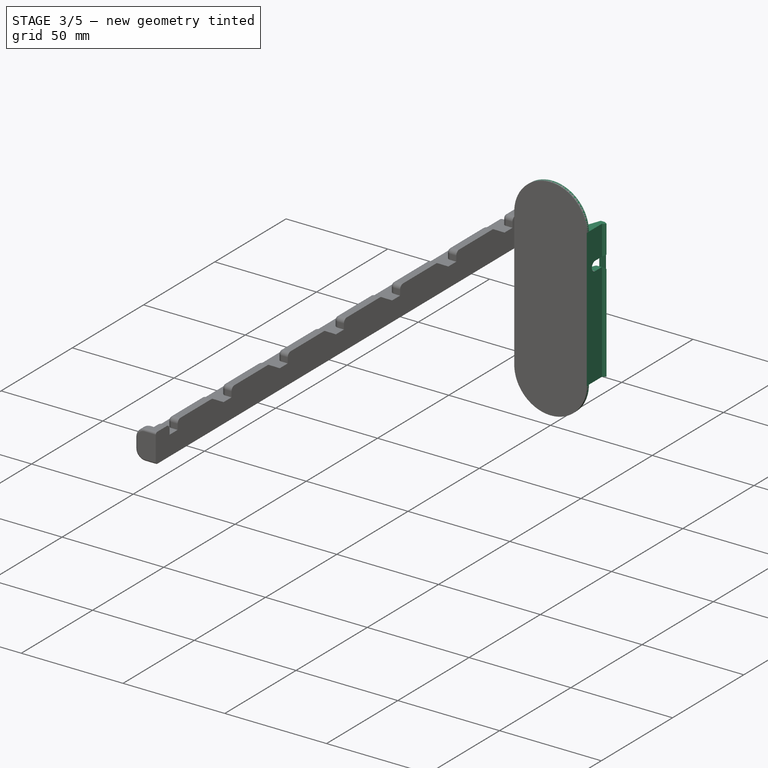
[diagram: stage 3 of 5 — iso view after this stage's code; geometry added in this stage tinted green]
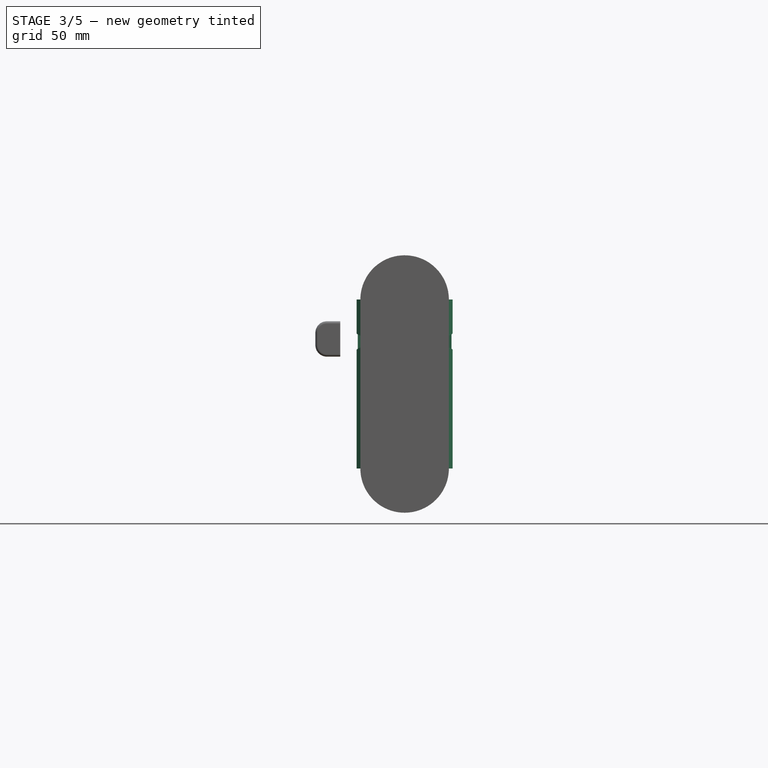
[diagram: stage 3 of 5 — front view after this stage's code; geometry added in this stage tinted green]
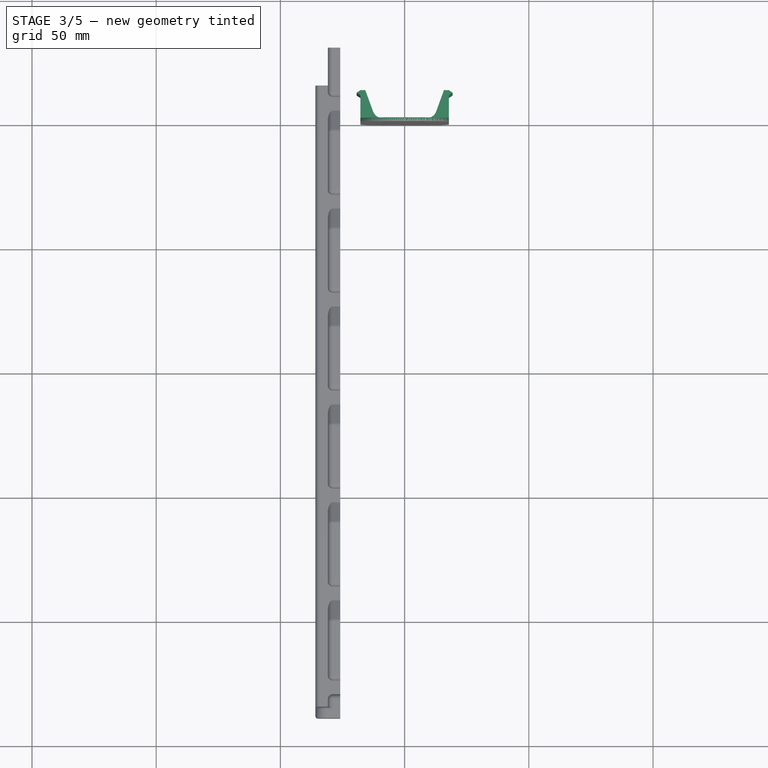
[diagram: stage 3 of 5 — top view after this stage's code; geometry added in this stage tinted green]
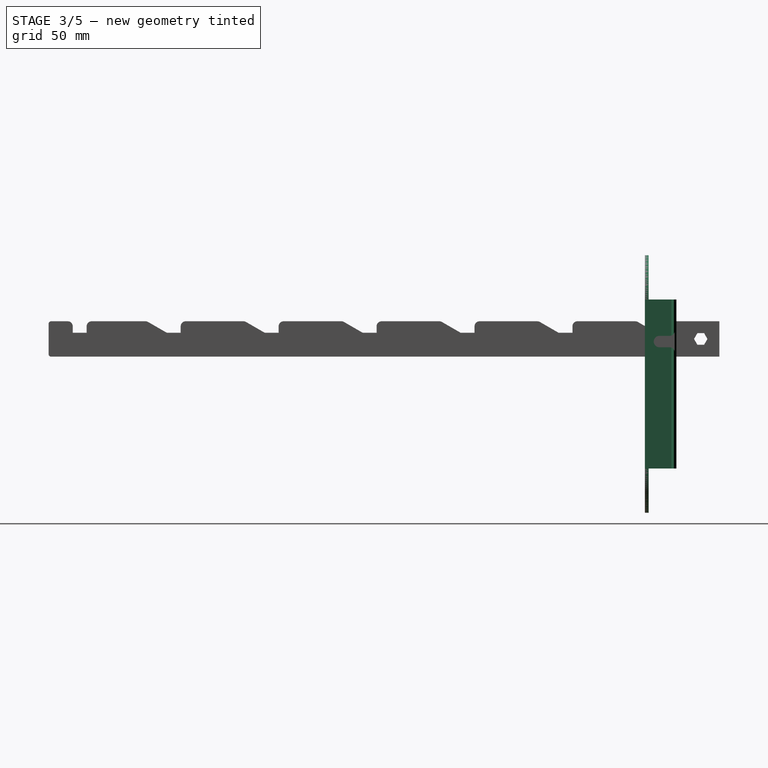
[diagram: stage 3 of 5 — right view after this stage's code; geometry added in this stage tinted green]
FEATURE [Sketcher::SketchObject] Sketch009  label="TelescopingPadBevelsCutSketch"
  FullyConstrained = true
  MapMode = 5
  Placement = pos=(0,0,0) rot=(1,0,0;1.5708rad)
  Support = -> [XZ_Plane002]
  expr: Constraints[32] = <<P90Measurements>>.PadBottomWidth
  expr: Constraints[29] = <<P90Measurements>>.PadWidestWidth
  expr: Constraints[31] = <<P90Measurements>>.PadWidestWidthInnerShoulderDistanceFromReferencePoint - 5mm
  expr: Constraints[30] = <<P90Measurements>>.PadThinnestWidth
  expr: Constraints[27] = <<P90Measurements>>.ButtOverallHeight
  sketch-geometry (15):
    g0: LineSegment StartX=-35.6159 StartY=130.218 StartZ=0 EndX=35.6159 EndY=130.218 EndZ=0
    g1: LineSegment StartX=35.6159 StartY=130.218 StartZ=0 EndX=35.6159 EndY=-10 EndZ=0
    g2: LineSegment StartX=35.6159 StartY=-10 StartZ=0 EndX=-35.6159 EndY=-10 EndZ=0
    g3: LineSegment StartX=-35.6159 StartY=-10 StartZ=0 EndX=-35.6159 EndY=130.218 EndZ=0
    g4: ArcOfCircle CenterX=-3.81 CenterY=18.6944 CenterZ=0 NormalX=0 NormalY=0 NormalZ=1 AngleXU=0 Radius=18.6944 StartAngle=3.14159 EndAngle=4.71239
    g5: ArcOfCircle CenterX=3.81 CenterY=18.6944 CenterZ=0 NormalX=0 NormalY=0 NormalZ=1 AngleXU=0 Radius=18.6944 StartAngle=4.71239 EndAngle=6.28319
    g6: ArcOfCircle CenterX=8e-16 CenterY=94.6023 CenterZ=0 NormalX=0 NormalY=0 NormalZ=1 AngleXU=0 Radius=25.6159 StartAngle=1.5708 EndAngle=3.14159
    g7: ArcOfCircle CenterX=8e-16 CenterY=94.6023 CenterZ=0 NormalX=0 NormalY=0 NormalZ=1 AngleXU=0 Radius=25.6159 StartAngle=0 EndAngle=1.5708
    g8: LineSegment StartX=-25.6159 StartY=94.6023 StartZ=0 EndX=-25.6159 EndY=59.3128 EndZ=0
    g9: LineSegment StartX=-25.6159 StartY=59.3128 StartZ=0 EndX=-22.5044 EndY=59.3128 EndZ=0
    g10: LineSegment StartX=-22.5044 StartY=59.3128 StartZ=0 EndX=-22.5044 EndY=18.6944 EndZ=0
    g11: LineSegment StartX=-3.81 StartY=0 StartZ=0 EndX=3.81 EndY=0 EndZ=0
    g12: LineSegment StartX=22.5044 StartY=18.6944 StartZ=0 EndX=22.5044 EndY=59.3128 EndZ=0
    g13: LineSegment StartX=22.5044 StartY=59.3128 StartZ=0 EndX=25.6159 EndY=59.3128 EndZ=0
    g14: LineSegment StartX=25.6159 StartY=59.3128 StartZ=0 EndX=25.6159 EndY=94.6023 EndZ=0
  constraints (39):
    c: Coincident(g0,g1)
    c: Coincident(g1,g2)
    c: Coincident(g2,g3)
    c: Coincident(g3,g0)
    c: Horizontal(g0)
    c: Vertical(g1)
    c: Vertical(g3)
    c: Symmetric(g2,g1,g-2)
    c: PointOnObject(g4,g-1)
    c: PointOnObject(g5,g-1)
    c: Vertical(g8)
    c: Coincident(g9,g8)
    c: Vertical(g10)
    c: Vertical(g12)
    c: Coincident(g13,g12)
    c: Vertical(g14)
    c: Coincident(g13,g14)
    c: Horizontal(g13)
    c: Tangent(g6,g8) = -1.5708
    c: Tangent(g7,g14) = -1.5708
    c: Tangent(g10,g4) = -1.5708
    c: Tangent(g11,g4) = -1.5708
    c: Tangent(g11,g5) = -1.5708
    c: Tangent(g12,g5) = -1.5708
    c: Symmetric(g12,g10,g-2)
    c: Symmetric(g8,g13,g-2)
    c: Coincident(g10,g9)
    c: DistanceY(g-1,g7) = 120.218
    c: Equal(g5,g4)
    c: DistanceX(g6,g7) = 51.2318
    c: DistanceX(g9,g12) = 45.0088
    c: DistanceY(g-1,g12) = 59.3128
    c: DistanceX(g11,g11) = 7.62
    c: PointOnObject(g6,g-2)
    c: Tangent(g6,g7) = -1.5708
    c: Equal(g8,g14)
    c: DistanceY(g2,g-1) = 10
    c: DistanceY(g6,g0) = 10
    c: DistanceX(g7,g1) = 10
FEATURE [PartDesign::Pocket] Pocket002  label="TelescopingPadBevelsCutPocket"
  BaseFeature = -> Pad006
  Length = 5
  Length2 = 100
  Midplane = true
  Placement = pos=(0,0,0) rot=(1,0,0;1.5708rad)
  Profile = -> Sketch009
  Type = 1
FEATURE [Sketcher::SketchObject] Sketch010  label="TelescopingBarInsertArmSketch"
  FullyConstrained = true
  MapMode = 5
  Placement = pos=(0,0,0) rot=(1,0,0;1.5708rad)
  Support = -> [XZ_Plane002]
  expr: Constraints[11] = <<TelescopingBarSettings>>.BarThickness + <<ProjectSettings>>.LooseTolerance * 2
  expr: Constraints[12] = <<P90Measurements>>.PadWidestWidthOuterShoulderDistanceFromReferencePoint + 0.1mm
  expr: Constraints[10] = <<P90Measurements>>.PadWidestWidth / 2
  expr: Constraints[13] = <<TelescopingBarSettings>>.BarThickness * 3 - 0.2mm
  expr: Constraints[15] = <<P90Measurements>>.PadThinnestWidth / 2
  sketch-geometry (10):
    g0: LineSegment StartX=31.2159 StartY=70.839 StartZ=0 EndX=31.2159 EndY=85.639 EndZ=0
    g1: LineSegment StartX=31.2159 StartY=85.639 StartZ=0 EndX=25.6159 EndY=85.639 EndZ=0
    g2: LineSegment StartX=25.6159 StartY=85.639 StartZ=0 EndX=25.6159 EndY=70.839 EndZ=0
    g3: LineSegment StartX=25.6159 StartY=70.839 StartZ=0 EndX=31.2159 EndY=70.839 EndZ=0
    g4: LineSegment StartX=35.7859 StartY=70.839 StartZ=0 EndX=35.7859 EndY=85.739 EndZ=0
    g5: LineSegment StartX=22.5044 StartY=106.148 StartZ=0 EndX=22.5044 EndY=50.4301 EndZ=0
    g6: ArcOfCircle CenterX=31.2159 CenterY=70.839 CenterZ=0 NormalX=0 NormalY=0 NormalZ=1 AngleXU=0 Radius=4.57 StartAngle=5.67232 EndAngle=6.28319
    g7: LineSegment StartX=22.5044 StartY=50.4301 StartZ=0 EndX=34.9594 EndY=68.2178 EndZ=0
    g8: LineSegment StartX=22.5044 StartY=106.148 StartZ=0 EndX=34.9594 EndY=88.3602 EndZ=0
    g9: ArcOfCircle CenterX=31.2159 CenterY=85.739 CenterZ=0 NormalX=0 NormalY=0 NormalZ=1 AngleXU=0 Radius=4.57 StartAngle=9e-16 EndAngle=0.610865
  constraints (28):
    c: Vertical(g0)
    c: Coincident(g0,g1)
    c: Horizontal(g1)
    c: Coincident(g1,g2)
    c: Vertical(g2)
    c: Coincident(g2,g3)
    c: Coincident(g3,g0)
    c: Vertical(g5)
    c: Vertical(g4)
    c: Horizontal(g3)
    c: DistanceX(g-1,g2) = 25.6159
    c: DistanceX(g1,g1) = 5.6
    c: DistanceY(g-1,g2) = 70.839
    c: DistanceY(g0,g0) = 14.8
    c: Coincident(g6,g0)
    c: DistanceX(g-1,g5) = 22.5044
    c: Coincident(g7,g5)
    c: Coincident(g8,g5)
    c: Tangent(g6,g4) = -1.5708
    c: Tangent(g7,g6) = -1.5708
    c: Equal(g7,g8)
    c: Angle(g4,g7) = 2.53073
    c: DistanceX(g-1,g4) = 35.7859  'DistanceFromCenterlineToOutsideOfBarInsertArm'
    c: PointOnObject(g9,g0)
    c: DistanceY(g0,g9) = 0.1
    c: Tangent(g9,g8) = 1.5708
    c: Tangent(g9,g4) = -1.5708
    c: Diameter(g9) = 9.14
FEATURE [Spreadsheet::Sheet] Spreadsheet003  label="TelescopingPadSettings"
  cells = A1=TelescopingBarInsertDepth; B1(TelescopingBarInsertDepth)==15mm; A2=TelescopingButtThickness; B2(TelescopingButtThickness)==10mm
FEATURE [PartDesign::Pad] Pad007  label="TelescopingBarInsertArmPad"
  BaseFeature = -> Pocket002
  Direction = (1,1,1)
  Length = 15
  Length2 = 100
  Placement = pos=(0,0,0) rot=(1,0,0;1.5708rad)
  Profile = -> Sketch010
  Reversed = true
  Type = 0
  expr: Length = <<TelescopingPadSettings>>.TelescopingBarInsertDepth
FEATURE [Sketcher::SketchObject] Sketch011  label="CrosspinHoleSketch"
  FullyConstrained = true
  MapMode = 5
  Placement = pos=(0,0,0) rot=(0.57735,0.57735,0.57735;2.0944rad)
  Support = -> [YZ_Plane002]
  expr: Constraints[30] = <<TelescopingBarSettings>>.CrosspinThickness + <<ProjectSettings>>.LooseTolerance * 2
  expr: Constraints[8] = <<TelescopingBarSettings>>.CrosspinThickness + <<ProjectSettings>>.LooseTolerance * 2
  expr: Constraints[10] = <<P90Measurements>>.PadWidestWidthOuterShoulderDistanceFromReferencePoint + <<TelescopingBarSettings>>.BarThickness - <<ProjectSettings>>.LooseTolerance
  expr: Constraints[11] = <<TelescopingBarSettings>>.BarThickness - <<ProjectSettings>>.LooseTolerance
  sketch-geometry (13):
    g0: LineSegment StartX=4.7 StartY=81.039 StartZ=0 EndX=10.3 EndY=81.039 EndZ=0
    g1: LineSegment StartX=10.3 StartY=81.039 StartZ=0 EndX=10.3 EndY=75.439 EndZ=0
    g2: LineSegment StartX=10.3 StartY=75.439 StartZ=0 EndX=4.7 EndY=75.439 EndZ=0
    g3: LineSegment StartX=4.7 StartY=75.439 StartZ=0 EndX=4.7 EndY=81.039 EndZ=0
    g4: LineSegment StartX=4.7 StartY=78.239 StartZ=0 EndX=6.1 EndY=75.8141 EndZ=0
    g5: LineSegment StartX=6.1 StartY=75.8141 StartZ=0 EndX=8.9 EndY=75.8141 EndZ=0
    g6: LineSegment StartX=8.9 StartY=75.8141 StartZ=0 EndX=10.3 EndY=78.239 EndZ=0
    g7: LineSegment StartX=10.3 StartY=78.239 StartZ=0 EndX=8.9 EndY=80.6639 EndZ=0
    g8: LineSegment StartX=8.9 StartY=80.6639 StartZ=0 EndX=6.1 EndY=80.6639 EndZ=0
    g9: LineSegment StartX=6.1 StartY=80.6639 StartZ=0 EndX=4.7 EndY=78.239 EndZ=0
    g10: Circle CenterX=7.5 CenterY=78.239 CenterZ=0 NormalX=0 NormalY=0 NormalZ=1 AngleXU=0 Radius=2.8
    g11: LineSegment StartX=7.5 StartY=78.239 StartZ=0 EndX=4.7 EndY=81.039 EndZ=0
    g12: LineSegment StartX=7.5 StartY=78.239 StartZ=0 EndX=10.3 EndY=75.439 EndZ=0
  constraints (33):
    c: Coincident(g0,g1)
    c: Coincident(g1,g2)
    c: Coincident(g2,g3)
    c: Coincident(g3,g0)
    c: Horizontal(g0)
    c: Horizontal(g2)
    c: Vertical(g1)
    c: Vertical(g3)
    c: DistanceX(g0,g0) = 5.6
    c: Equal(g0,g3)
    c: DistanceY(g-1,g2) = 75.439
    c: DistanceX(g-1,g2) = 4.7
    c: Coincident(g4,g5)
    c: Coincident(g5,g6)
    c: Coincident(g6,g7)
    c: Coincident(g7,g8)
    c: Coincident(g8,g9)
    c: Coincident(g9,g4)
    c: Equal(g4, g5-g9) x5
    c: PointOnObject(g4,g10)
    c: PointOnObject(g5,g10)
    c: PointOnObject(g6,g10)
    c: PointOnObject(g7,g10)
    c: PointOnObject(g8,g10)
    c: PointOnObject(g9,g10)
    c: Horizontal(g4,g6)
    c: DistanceX(g4,g6) = 5.6
    c: PointOnObject(g4,g3)
    c: Coincident(g11,g10)
    c: Coincident(g11,g0)
    c: Coincident(g12,g11)
    c: Coincident(g12,g1)
    c: Equal(g12,g11)
FEATURE [PartDesign::Mirrored] Mirrored  label="TelescopingBarInsertArmMirror"
  BaseFeature = -> Pad007
  MirrorPlane = -> Sketch010 [V_Axis]
  Originals = -> [Pad007]
  Placement = pos=(0,0,0) rot=(1,0,0;1.5708rad)
FEATURE [PartDesign::Pocket] Pocket003  label="CrosspinHolePocket"
  BaseFeature = -> Mirrored
  Length = 5
  Length2 = 100
  Midplane = true
  Placement = pos=(0,0,0) rot=(1,0,0;1.5708rad)
  Profile = -> Sketch011
  Type = 1
FEATURE [PartDesign::Fillet] Fillet  label="ComfortFillet"
  Base = -> Pocket003 [Edge86]
  BaseFeature = -> Pocket003
  Placement = pos=(0,0,0) rot=(1,0,0;1.5708rad)
  Radius = 5
  Refine = true
  SupportTransform = false
FEATURE [PartDesign::Fillet] Fillet002  label="BarinsertArmFillet"
  Base = -> Fillet [Edge45,Edge120,Edge143,Edge74,Edge184,Edge6]
  BaseFeature = -> Fillet
  Placement = pos=(0,0,0) rot=(1,0,0;1.5708rad)
  Radius = 2
  SupportTransform = false
FEATURE [PartDesign::Pad] Pad020  label="PaperworkLidMainPad"
  Direction = (1,1,1)
  Length = 1.5
  Length2 = 100
  Placement = pos=(0,0,0) rot=(1,0,0;1.5708rad)
  Profile = -> Sketch053
  Reversed = true
  Type = 0
  expr: Length = <<ProjectSettings001>>.PaperworklidbaseThickness
FEATURE [PartDesign::AdditivePipe] AdditivePipe  label="PaperworkLidWallAndNubAdditivePipe"
  AuxilleryCurvelinear = true
  AuxillerySpineTangent = false
  BaseFeature = -> Pad020
  Binormal = (0,0,0)
  Mode = 0
  Placement = pos=(0,0,0) rot=(1,0,0;1.5708rad)
  Profile = -> Sketch051
  Spine = -> Pad020 [Edge17]
  SpineTangent = false
  Transformation = 0
  Transition = 0
FEATURE [PartDesign::Mirrored] Mirrored004  label="PaperworkLidWallAndNubMirrored"
  BaseFeature = -> AdditivePipe
  MirrorPlane = -> Sketch051 [V_Axis]
  Originals = -> [AdditivePipe]
  Placement = pos=(0,0,0) rot=(1,0,0;1.5708rad)
  Refine = true
FEATURE [PartDesign::Pocket] Pocket024  label="PaperworkLidCrosspinSlotPocket"
  BaseFeature = -> Mirrored004
  Length = 5
  Length2 = 100
  Midplane = true
  Placement = pos=(0,0,0) rot=(1,0,0;1.5708rad)
  Profile = -> Sketch052
  Type = 1
FEATURE [PartDesign::Fillet] Fillet015  label="ComfortFillet001"
  Base = -> Pocket027 [Edge59]
  BaseFeature = -> Pocket027
  Placement = pos=(0,0,0) rot=(1,0,0;1.5708rad)
  Radius = 5
  SupportTransform = false
  expr: Radius = <<ProjectSettings001>>.TelescopingPadComfortFilletRadius
FEATURE [PartDesign::Pocket] Pocket014  label="LightningCutPocket"
  BaseFeature = -> Fillet015
  Length = 12
  Length2 = 100
  Placement = pos=(0,0,0) rot=(1,0,0;1.5708rad)
  Profile = -> Sketch029
  Type = 0
  expr: Length = <<ProjectSettings001>>.TelescopingBarInsertDepth
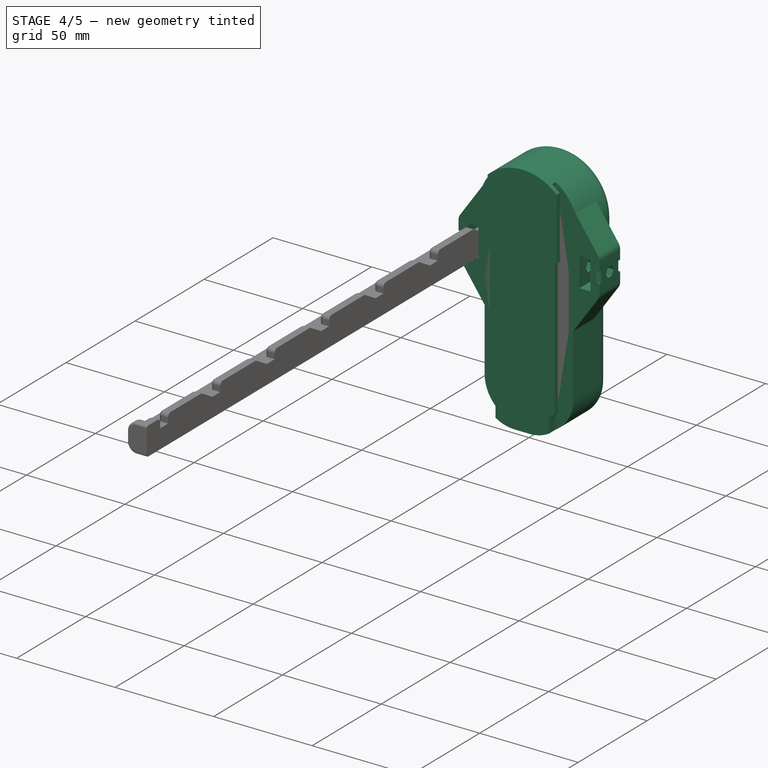
[diagram: stage 4 of 5 — iso view after this stage's code; geometry added in this stage tinted green]
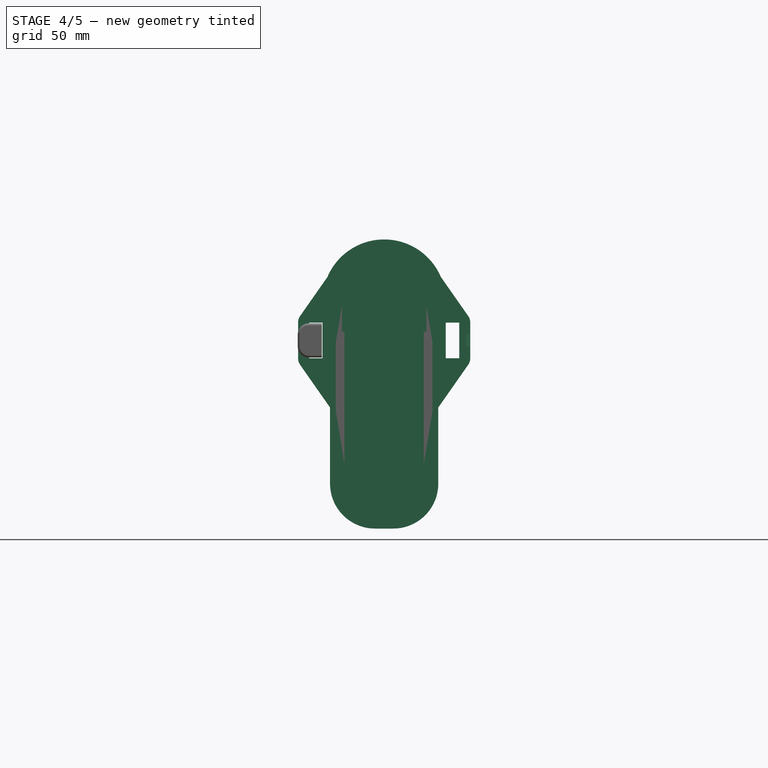
[diagram: stage 4 of 5 — front view after this stage's code; geometry added in this stage tinted green]
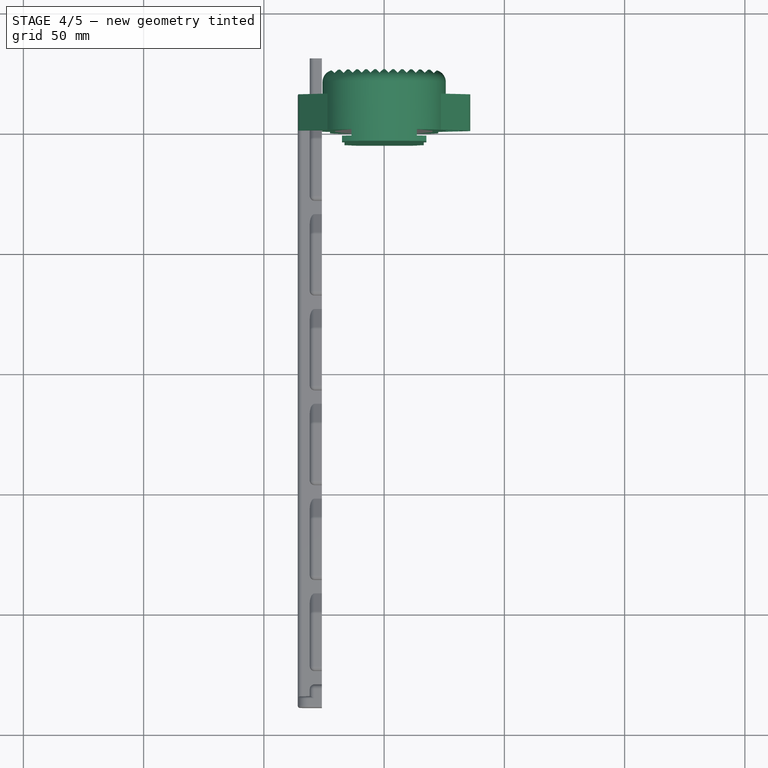
[diagram: stage 4 of 5 — top view after this stage's code; geometry added in this stage tinted green]
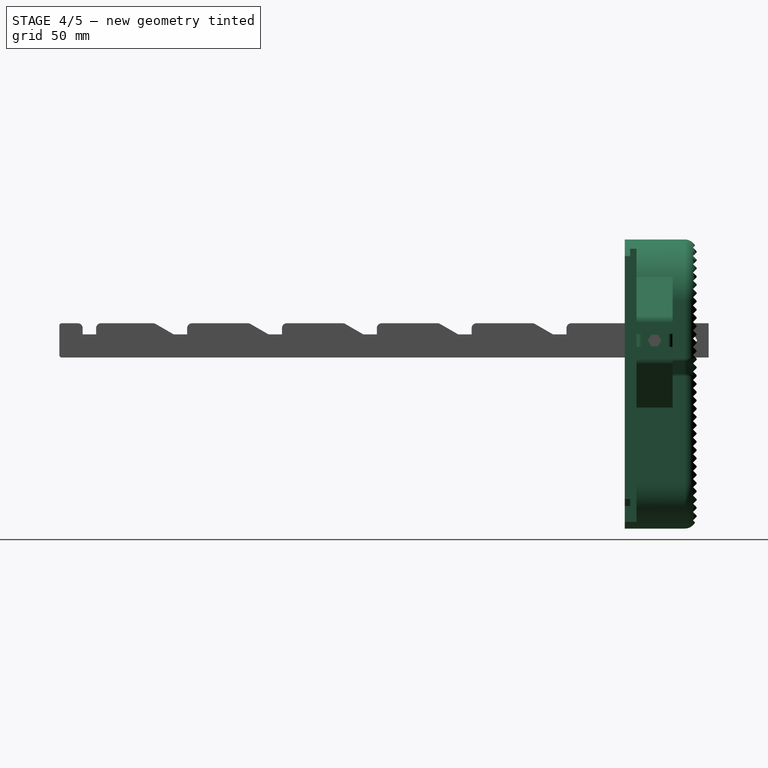
[diagram: stage 4 of 5 — right view after this stage's code; geometry added in this stage tinted green]
FEATURE [Sketcher::SketchObject] Sketch004  label="PadBevelsCutSketch"
  FullyConstrained = true
  MapMode = 5
  Placement = pos=(0,0,0) rot=(1,0,0;1.5708rad)
  Support = -> [XZ_Plane]
  expr: Constraints[27] = <<P90Measurements>>.ButtOverallHeight
  expr: Constraints[30] = <<P90Measurements>>.PadThinnestWidth
  expr: Constraints[31] = <<P90Measurements>>.PadWidestWidthInnerShoulderDistanceFromReferencePoint - 5mm
  expr: Constraints[29] = <<P90Measurements>>.PadWidestWidth
  expr: Constraints[32] = <<P90Measurements>>.PadBottomWidth
  sketch-geometry (15):
    g0: LineSegment StartX=-35.6159 StartY=130.218 StartZ=0 EndX=35.6159 EndY=130.218 EndZ=0
    g1: LineSegment StartX=35.6159 StartY=130.218 StartZ=0 EndX=35.6159 EndY=-10 EndZ=0
    g2: LineSegment StartX=35.6159 StartY=-10 StartZ=0 EndX=-35.6159 EndY=-10 EndZ=0
    g3: LineSegment StartX=-35.6159 StartY=-10 StartZ=0 EndX=-35.6159 EndY=130.218 EndZ=0
    g4: ArcOfCircle CenterX=-3.81 CenterY=18.6944 CenterZ=0 NormalX=0 NormalY=0 NormalZ=1 AngleXU=0 Radius=18.6944 StartAngle=3.14159 EndAngle=4.71239
    g5: ArcOfCircle CenterX=3.81 CenterY=18.6944 CenterZ=0 NormalX=0 NormalY=0 NormalZ=1 AngleXU=0 Radius=18.6944 StartAngle=4.71239 EndAngle=6.28319
    g6: ArcOfCircle CenterX=2.5e-15 CenterY=94.6023 CenterZ=0 NormalX=0 NormalY=0 NormalZ=1 AngleXU=0 Radius=25.6159 StartAngle=1.5708 EndAngle=3.14159
    g7: ArcOfCircle CenterX=2.5e-15 CenterY=94.6023 CenterZ=0 NormalX=0 NormalY=0 NormalZ=1 AngleXU=0 Radius=25.6159 StartAngle=0 EndAngle=1.5708
    g8: LineSegment StartX=-25.6159 StartY=94.6023 StartZ=0 EndX=-25.6159 EndY=59.3128 EndZ=0
    g9: LineSegment StartX=-25.6159 StartY=59.3128 StartZ=0 EndX=-22.5044 EndY=59.3128 EndZ=0
    g10: LineSegment StartX=-22.5044 StartY=59.3128 StartZ=0 EndX=-22.5044 EndY=18.6944 EndZ=0
    g11: LineSegment StartX=-3.81 StartY=0 StartZ=0 EndX=3.81 EndY=0 EndZ=0
    g12: LineSegment StartX=22.5044 StartY=18.6944 StartZ=0 EndX=22.5044 EndY=59.3128 EndZ=0
    g13: LineSegment StartX=22.5044 StartY=59.3128 StartZ=0 EndX=25.6159 EndY=59.3128 EndZ=0
    g14: LineSegment StartX=25.6159 StartY=59.3128 StartZ=0 EndX=25.6159 EndY=94.6023 EndZ=0
  constraints (39):
    c: Coincident(g0,g1)
    c: Coincident(g1,g2)
    c: Coincident(g2,g3)
    c: Coincident(g3,g0)
    c: Horizontal(g0)
    c: Vertical(g1)
    c: Vertical(g3)
    c: Symmetric(g2,g1,g-2)
    c: PointOnObject(g4,g-1)
    c: PointOnObject(g5,g-1)
    c: Vertical(g8)
    c: Coincident(g9,g8)
    c: Vertical(g10)
    c: Vertical(g12)
    c: Coincident(g13,g12)
    c: Vertical(g14)
    c: Coincident(g13,g14)
    c: Horizontal(g13)
    c: Tangent(g6,g8) = -1.5708
    c: Tangent(g7,g14) = -1.5708
    c: Tangent(g10,g4) = -1.5708
    c: Tangent(g11,g4) = -1.5708
    c: Tangent(g11,g5) = -1.5708
    c: Tangent(g12,g5) = -1.5708
    c: Symmetric(g12,g10,g-2)
    c: Symmetric(g8,g13,g-2)
    c: Coincident(g10,g9)
    c: DistanceY(g-1,g7) = 120.218
    c: Equal(g5,g4)
    c: DistanceX(g6,g7) = 51.2318
    c: DistanceX(g9,g12) = 45.0088
    c: DistanceY(g-1,g12) = 59.3128
    c: DistanceX(g11,g11) = 7.62
    c: PointOnObject(g6,g-2)
    c: Tangent(g6,g7) = -1.5708
    c: Equal(g8,g14)
    c: DistanceY(g2,g-1) = 10
    c: DistanceY(g6,g0) = 10
    c: DistanceX(g7,g1) = 10
FEATURE [PartDesign::Pocket] Pocket001  label="PadBevelsCutPocket"
  BaseFeature = -> Pad002
  Length = 5
  Length2 = 100
  Midplane = true
  Placement = pos=(0,0,0) rot=(1,0,0;1.5708rad)
  Profile = -> Sketch004
  Type = 1
FEATURE [Sketcher::SketchObject] Sketch014  label="CentralPadTelescopingBarInsertArmSketch"
  FullyConstrained = true
  MapMode = 5
  Placement = pos=(0,0,0) rot=(1,0,0;1.5708rad)
  Support = -> [XZ_Plane]
  expr: Constraints[34] = <<TelescopingBarSettings>>.BarThickness + <<ProjectSettings>>.TightTolerance * 2
  expr: Constraints[16] = <<P90Measurements>>.PadThinnestWidth / 2
  expr: Constraints[13] = <<TelescopingBarSettings>>.BarThickness * 3
  expr: Constraints[10] = <<P90Measurements>>.PadWidestWidth / 2
  expr: Constraints[12] = <<P90Measurements>>.PadWidestWidthOuterShoulderDistanceFromReferencePoint
  expr: Constraints[11] = <<TelescopingBarSettings>>.BarThickness + <<ProjectSettings>>.LooseTolerance * 2
  sketch-geometry (14):
    g0: LineSegment StartX=31.2159 StartY=70.739 StartZ=0 EndX=31.2159 EndY=75.539 EndZ=0
    g1: LineSegment StartX=31.2159 StartY=85.739 StartZ=0 EndX=25.6159 EndY=85.739 EndZ=0
    g2: LineSegment StartX=25.6159 StartY=85.739 StartZ=0 EndX=25.6159 EndY=70.739 EndZ=0
    g3: LineSegment StartX=25.6159 StartY=70.739 StartZ=0 EndX=31.2159 EndY=70.739 EndZ=0
    g4: LineSegment StartX=35.7859 StartY=70.739 StartZ=0 EndX=35.7859 EndY=75.539 EndZ=0
    g5: LineSegment StartX=22.5044 StartY=106.148 StartZ=0 EndX=22.5044 EndY=50.3301 EndZ=0
    g6: ArcOfCircle CenterX=31.2159 CenterY=85.739 CenterZ=0 NormalX=0 NormalY=0 NormalZ=1 AngleXU=0 Radius=4.57 StartAngle=5e-16 EndAngle=0.610865
    g7: ArcOfCircle CenterX=31.2159 CenterY=70.739 CenterZ=0 NormalX=0 NormalY=0 NormalZ=1 AngleXU=0 Radius=4.57 StartAngle=5.67232 EndAngle=6.28319
    g8: LineSegment StartX=22.5044 StartY=50.3301 StartZ=0 EndX=34.9594 EndY=68.1178 EndZ=0
    g9: LineSegment StartX=22.5044 StartY=106.148 StartZ=0 EndX=34.9594 EndY=88.3602 EndZ=0
    g10: LineSegment StartX=31.2159 StartY=80.939 StartZ=0 EndX=35.7859 EndY=80.939 EndZ=0
    g11: LineSegment StartX=31.2159 StartY=75.539 StartZ=0 EndX=35.7859 EndY=75.539 EndZ=0
    g12: LineSegment StartX=31.2159 StartY=80.939 StartZ=0 EndX=31.2159 EndY=85.739 EndZ=0
    g13: LineSegment StartX=35.7859 StartY=80.939 StartZ=0 EndX=35.7859 EndY=85.739 EndZ=0
  constraints (36):
    c: Vertical(g0)
    c: Coincident(g12,g1)
    c: Horizontal(g1)
    c: Coincident(g1,g2)
    c: Vertical(g2)
    c: Coincident(g2,g3)
    c: Coincident(g3,g0)
    c: Vertical(g5)
    c: Vertical(g4)
    c: Horizontal(g3)
    c: DistanceX(g-1,g2) = 25.6159
    c: DistanceX(g1,g1) = 5.6
    c: DistanceY(g-1,g2) = 70.739
    c: DistanceY(g0,g12) = 15
    c: Coincident(g6,g12)
    c: Coincident(g7,g0)
    c: DistanceX(g-1,g5) = 22.5044
    c: Coincident(g8,g5)
    c: Coincident(g9,g5)
    c: Tangent(g7,g4) = -1.5708
    c: Tangent(g9,g6) = 1.5708
    c: Tangent(g8,g7) = -1.5708
    c: Diameter(g6) = 9.14
    c: Equal(g8,g9)
    c: Angle(g4,g8) = 2.53073
    c: Horizontal(g11)
    c: Horizontal(g10)
    c: Coincident(g0,g11)
    c: Coincident(g12,g10)
    c: Tangent(g0,g12)
    c: Coincident(g4,g11)
    c: Coincident(g13,g10)
    c: Tangent(g4,g13)
    c: Tangent(g6,g13) = -1.5708
    c: DistanceY(g4,g10) = 5.4
    c: Equal(g12,g0)
FEATURE [PartDesign::Pad] Pad008  label="CentralPadTelescopingBarInsertArmPad"
  BaseFeature = -> Pocket001
  Direction = (1,1,1)
  Length = 15
  Length2 = 100
  Placement = pos=(0,0,0) rot=(1,0,0;1.5708rad)
  Profile = -> Sketch014
  Reversed = true
  Type = 0
  expr: Length = <<CentralPadSettings>>.PadThickness
FEATURE [PartDesign::Mirrored] Mirrored001  label="CentralPadTelescopingBarInsertArmMirror"
  BaseFeature = -> Pad008
  MirrorPlane = -> Sketch014 [V_Axis]
  Originals = -> [Pad008]
  Placement = pos=(0,0,0) rot=(1,0,0;1.5708rad)
FEATURE [Sketcher::SketchObject] Sketch018  label="LockingPinHoleSketch"
  FullyConstrained = true
  MapMode = 5
  Placement = pos=(0,0,0) rot=(0.57735,0.57735,0.57735;2.0944rad)
  Support = -> [YZ_Plane]
  expr: Constraints[11] = <<TelescopingBarSettings>>.CrosspinThickness * 3 + <<ProjectSettings>>.LooseTolerance * 2
  expr: Constraints[10] = <<TelescopingBarSettings>>.BarThickness - <<ProjectSettings>>.LooseTolerance
  expr: Constraints[9] = <<P90Measurements>>.PadWidestWidthOuterShoulderDistanceFromReferencePoint + <<TelescopingBarSettings>>.BarThickness - <<ProjectSettings>>.LooseTolerance * 2
  expr: Constraints[8] = <<TelescopingBarSettings>>.CrosspinThickness + <<ProjectSettings>>.LooseTolerance * 2
  sketch-geometry (4):
    g0: LineSegment StartX=4.7 StartY=90.739 StartZ=0 EndX=10.3 EndY=90.739 EndZ=0
    g1: LineSegment StartX=10.3 StartY=90.739 StartZ=0 EndX=10.3 EndY=75.139 EndZ=0
    g2: LineSegment StartX=10.3 StartY=75.139 StartZ=0 EndX=4.7 EndY=75.139 EndZ=0
    g3: LineSegment StartX=4.7 StartY=75.139 StartZ=0 EndX=4.7 EndY=90.739 EndZ=0
  constraints (12):
    c: Coincident(g0,g1)
    c: Coincident(g1,g2)
    c: Coincident(g2,g3)
    c: Coincident(g3,g0)
    c: Horizontal(g0)
    c: Horizontal(g2)
    c: Vertical(g1)
    c: Vertical(g3)
    c: DistanceX(g0,g0) = 5.6
    c: DistanceY(g-1,g2) = 75.139
    c: DistanceX(g-1,g2) = 4.7
    c: DistanceY(g1,g1) = 15.6
FEATURE [PartDesign::Pocket] Pocket007  label="LockingPinHolePocket"
  BaseFeature = -> Mirrored001
  Length = 62.4318
  Length2 = 100
  Midplane = true
  Placement = pos=(0,0,0) rot=(1,0,0;1.5708rad)
  Profile = -> Sketch018
  Type = 0
  expr: Length = <<P90Measurements>>.PadWidestWidth + <<TelescopingBarSettings>>.BarThickness * 2 + <<ProjectSettings>>.LooseTolerance * 4
FEATURE [PartDesign::Body] Body  label="MainTelescopingBody"
  Group = -> [Sketch,Pad,Sketch001,Pad001,Sketch002,Pocket,Sketch003,Pad002,Sketch004,Pocket001,Sketch014,Pad008,Mirrored001,Sketch018,Pocket007,Sketch019,Pocket008,Sketch022,Pocket010,Fillet006,Fillet007,Sketch030,Pocket015,Sketch031,Pocket016]
  Origin = -> Origin
  Tip = -> Pocket016
FEATURE [App::Part] Part001  label="LockingAssembly"
  Group = -> [Body,Part002]
  Origin = -> Origin008
  Placement = pos=(0,205,0) rot=(0,0,1;0rad)
FEATURE [Sketcher::SketchObject] Sketch032  label="LightningCutSketch001"
  FullyConstrained = true
  MapMode = 5
  Placement = pos=(0,0,0) rot=(1,0,0;1.5708rad)
  Support = -> [XZ_Plane002]
  sketch-geometry (6):
    g0: ArcOfCircle CenterX=2.1e-15 CenterY=26.115 CenterZ=0 NormalX=0 NormalY=0 NormalZ=1 AngleXU=0 Radius=18.115 StartAngle=3.14159 EndAngle=4.71239
    g1: LineSegment StartX=18.115 StartY=26.115 StartZ=0 EndX=18.115 EndY=94.105 EndZ=0
    g2: LineSegment StartX=-18.115 StartY=26.115 StartZ=0 EndX=-18.115 EndY=94.105 EndZ=0
    g3: ArcOfCircle CenterX=1.3e-15 CenterY=94.105 CenterZ=0 NormalX=0 NormalY=0 NormalZ=1 AngleXU=0 Radius=18.115 StartAngle=1.5708 EndAngle=3.14159
    g4: ArcOfCircle CenterX=1.3e-15 CenterY=94.105 CenterZ=0 NormalX=0 NormalY=0 NormalZ=1 AngleXU=0 Radius=18.115 StartAngle=0 EndAngle=1.5708
    g5: ArcOfCircle CenterX=2.1e-15 CenterY=26.115 CenterZ=0 NormalX=0 NormalY=0 NormalZ=1 AngleXU=0 Radius=18.115 StartAngle=4.71239 EndAngle=6.28319
  constraints (15):
    c: Vertical(g2)
    c: Vertical(g1)
    c: DistanceX(g2,g1) = 36.23
    c: Tangent(g2,g3) = 1.5708
    c: Tangent(g1,g4) = -1.5708
    c: DistanceY(g-1,g3) = 112.22
    c: Tangent(g4,g3) = -1.5708
    c: PointOnObject(g3,g-2)
    c: Symmetric(g2,g1,g-2)
    c: Tangent(g1,g5) = -1.5708
    c: Tangent(g0,g2) = 1.5708
    c: DistanceY(g-1,g5) = 8
    c: Tangent(g0,g5) = -1.5708
    c: PointOnObject(g0,g-2)
    c: Horizontal(g0,g1)
FEATURE [PartDesign::Pocket] Pocket017  label="PadLightningCutPocket"
  BaseFeature = -> Fillet002
  Length = 15
  Length2 = 100
  Placement = pos=(0,0,0) rot=(1,0,0;1.5708rad)
  Profile = -> Sketch032
  Type = 0
  expr: Length = <<TelescopingPadSettings>>.TelescopingBarInsertDepth
FEATURE [PartDesign::Fillet] Fillet014  label="PadLightningCutFillet"
  Base = -> Pocket017 [Edge69]
  BaseFeature = -> Pocket017
  Placement = pos=(0,0,0) rot=(1,0,0;1.5708rad)
  Radius = 2
  SupportTransform = false
FEATURE [Sketcher::SketchObject] Sketch042  label="PaperworkLidNubSketch"
  AttachmentOffset = pos=(0,0,60.1091) rot=(0,0,1;0rad)
  FullyConstrained = true
  MapMode = 5
  Placement = pos=(0,0,60.1091) rot=(0,0,1;0rad)
  Support = -> [XY_Plane002]
  expr: Constraints[7] = Pocket017.Length
  expr: .AttachmentOffset.Base.z = <<P90Measurements>>.ButtOverallHeight / 2
  sketch-geometry (3):
    g0: LineSegment StartX=-18.11 StartY=12.8 StartZ=0 EndX=-19.81 EndY=13.9 EndZ=0
    g1: LineSegment StartX=-19.81 StartY=13.9 StartZ=0 EndX=-18.11 EndY=15 EndZ=0
    g2: LineSegment StartX=-18.11 StartY=15 StartZ=0 EndX=-18.11 EndY=12.8 EndZ=0
  constraints (9):
    c: Coincident(g0,g1)
    c: Coincident(g1,g2)
    c: Vertical(g2)
    c: Coincident(g2,g0)
    c: Equal(g1,g0)
    c: DistanceY(g2,g2) = 2.2
    c: DistanceX(g0,g0) = 1.7
    c: DistanceY(g-1,g1) = 15
    c: DistanceX(g1,g-1) = 18.11
FEATURE [PartDesign::SubtractivePipe] SubtractivePipe  label="PadPaperworkSlotNubGroove"
  AuxilleryCurvelinear = true
  AuxillerySpineTangent = false
  BaseFeature = -> Fillet014
  Binormal = (0,0,0)
  Mode = 0
  Placement = pos=(0,0,0) rot=(1,0,0;1.5708rad)
  Profile = -> Sketch042
  Spine = -> Fillet014 [Edge127]
  SpineTangent = false
  Transformation = 0
  Transition = 0
FEATURE [PartDesign::Mirrored] Mirrored002  label="PadPaperworkLidNubGrooveMirror"
  BaseFeature = -> SubtractivePipe
  MirrorPlane = -> Sketch042 [V_Axis]
  Originals = -> [SubtractivePipe]
  Placement = pos=(0,0,0) rot=(1,0,0;1.5708rad)
FEATURE [Sketcher::SketchObject] Sketch040  label="HorizontalScallopSketch"
  FullyConstrained = true
  MapMode = 5
  Placement = pos=(0,0,0) rot=(0.57735,0.57735,0.57735;2.0944rad)
  Support = -> [YZ_Plane002]
  expr: Constraints[2] = <<TelescoptingPadBodyPad>>.Length
  sketch-geometry (5):
    g0: Circle CenterX=25 CenterY=0 CenterZ=0 NormalX=0 NormalY=0 NormalZ=1 AngleXU=0 Radius=1.5
    g1: LineSegment StartX=25 StartY=1.5 StartZ=0 EndX=23.5 EndY=0 EndZ=0
    g2: LineSegment StartX=23.5 StartY=0 StartZ=0 EndX=25 EndY=-1.5 EndZ=0
    g3: LineSegment StartX=25 StartY=-1.5 StartZ=0 EndX=26.5 EndY=0 EndZ=0
    g4: LineSegment StartX=26.5 StartY=0 StartZ=0 EndX=25 EndY=1.5 EndZ=0
  constraints (15):
    c: PointOnObject(g0,g-1)
    c: Radius(g0) = 1.5
    c: DistanceX(g-1,g0) = 25
    c: PointOnObject(g1,g0)
    c: PointOnObject(g1,g0)
    c: Coincident(g1,g2)
    c: PointOnObject(g2,g0)
    c: PointOnObject(g1,g-1)
    c: Coincident(g2,g3)
    c: PointOnObject(g3,g0)
    c: Coincident(g3,g4)
    c: Coincident(g4,g1)
    c: Vertical(g1,g0)
    c: Vertical(g0,g2)
    c: PointOnObject(g3,g-1)
FEATURE [Sketcher::SketchObject] Sketch041  label="VerticalScallopSketch"
  FullyConstrained = true
  MapMode = 5
  Support = -> [XY_Plane002]
  expr: Constraints[2] = <<P90Measurements>>.PadWidestWidth / 2 - <<ComfortFillet>>.Radius
  expr: Constraints[1] = <<TelescoptingPadBodyPad>>.Length
  sketch-geometry (5):
    g0: Circle CenterX=-20.6159 CenterY=25 CenterZ=0 NormalX=0 NormalY=0 NormalZ=1 AngleXU=0 Radius=1.5
    g1: LineSegment StartX=-22.1159 StartY=25 StartZ=0 EndX=-20.6159 EndY=26.5 EndZ=0
    g2: LineSegment StartX=-20.6159 StartY=26.5 StartZ=0 EndX=-19.1159 EndY=25 EndZ=0
    g3: LineSegment StartX=-19.1159 StartY=25 StartZ=0 EndX=-20.6159 EndY=23.5 EndZ=0
    g4: LineSegment StartX=-20.6159 StartY=23.5 StartZ=0 EndX=-22.1159 EndY=25 EndZ=0
  constraints (15):
    c: Radius(g0) = 1.5
    c: DistanceY(g-1,g0) = 25
    c: DistanceX(g0,g-1) = 20.6159
    c: PointOnObject(g1,g0)
    c: PointOnObject(g1,g0)
    c: Coincident(g1,g2)
    c: PointOnObject(g2,g0)
    c: Coincident(g2,g3)
    c: PointOnObject(g3,g0)
    c: Coincident(g3,g4)
    c: Coincident(g4,g1)
    c: Vertical(g1,g0)
    c: Vertical(g3,g0)
    c: Horizontal(g1,g0)
    c: Horizontal(g2,g0)
FEATURE [PartDesign::Pocket] Pocket018  label="VerticalScallopPocket"
  BaseFeature = -> Mirrored002
  Length = 5
  Length2 = 100
  Midplane = true
  Placement = pos=(0,0,0) rot=(1,0,0;1.5708rad)
  Profile = -> Sketch041
  Type = 1
FEATURE [PartDesign::LinearPattern] LinearPattern002  label="VerticalScallpLinearPattern"
  BaseFeature = -> Pocket018
  Direction = -> Sketch041 [H_Axis]
  Length = 41.2318
  Occurrences = 12
  Originals = -> [Pocket018]
  Placement = pos=(0,0,0) rot=(1,0,0;1.5708rad)
  expr: Length = <<P90Measurements>>.PadWidestWidth - <<ComfortFillet>>.Radius * 2
FEATURE [PartDesign::Pocket] Pocket019
  BaseFeature = -> LinearPattern002
  Length = 5
  Length2 = 100
  Midplane = true
  Placement = pos=(0,0,0) rot=(1,0,0;1.5708rad)
  Profile = -> Sketch040
  Type = 1
FEATURE [PartDesign::LinearPattern] LinearPattern003
  BaseFeature = -> Pocket019
  Direction = -> Z_Axis002
  Length = 120.218
  Occurrences = 36
  Originals = -> [Pocket019]
  Placement = pos=(0,0,0) rot=(1,0,0;1.5708rad)
  expr: Length = <<P90Measurements>>.ButtOverallHeight
FEATURE [PartDesign::Groove] Groove  label="PaperworkLidFingerHoleGroove"
  Angle = 360
  Axis = (0,1,0)
  Base = (0,0,60.1091)
  BaseFeature = -> Pocket024
  Placement = pos=(0,0,0) rot=(1,0,0;1.5708rad)
  Profile = -> Sketch054
  ReferenceAxis = -> Sketch054 [V_Axis]
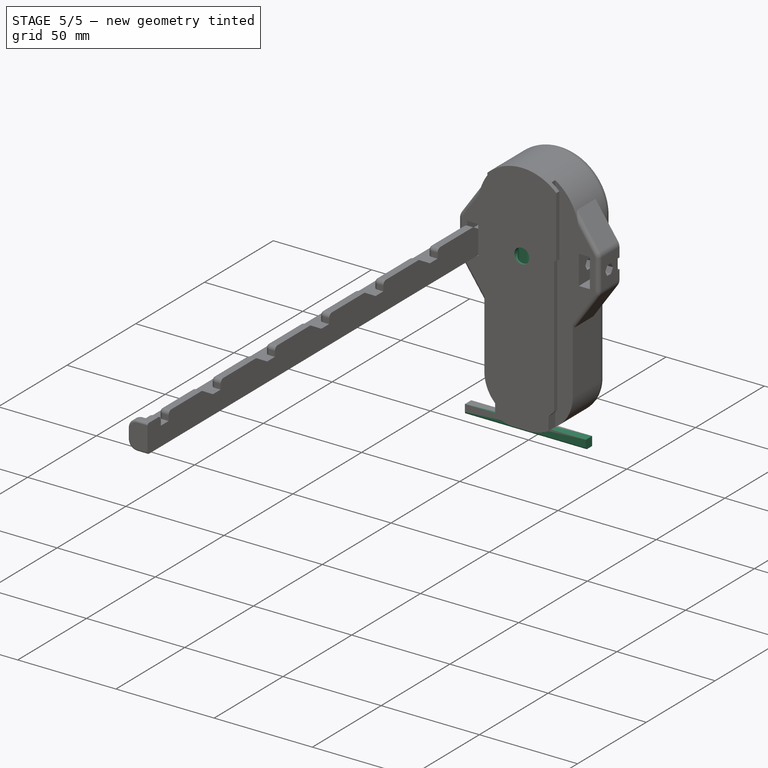
[diagram: stage 5 of 5 — iso view after this stage's code; geometry added in this stage tinted green]
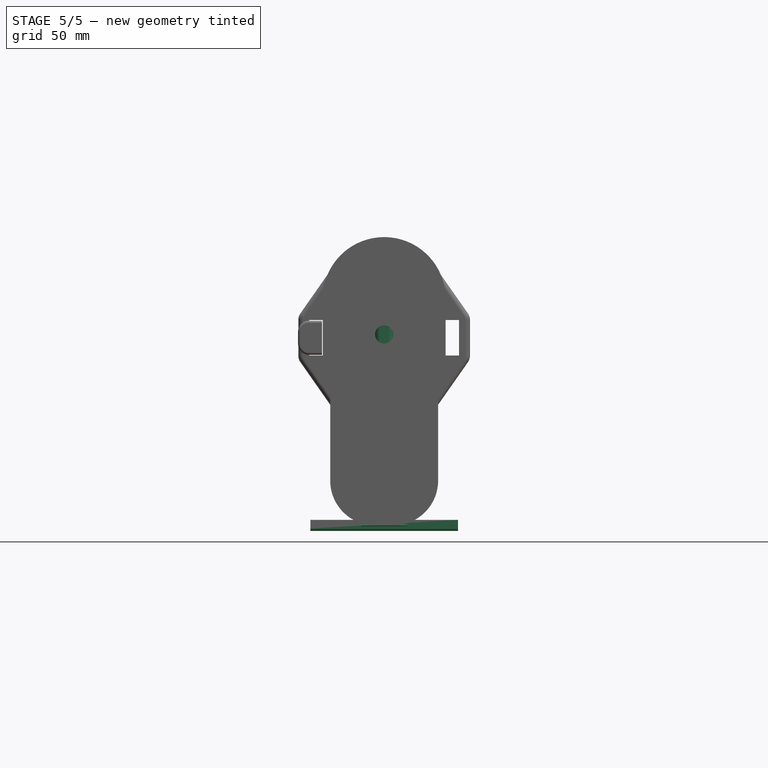
[diagram: stage 5 of 5 — front view after this stage's code; geometry added in this stage tinted green]
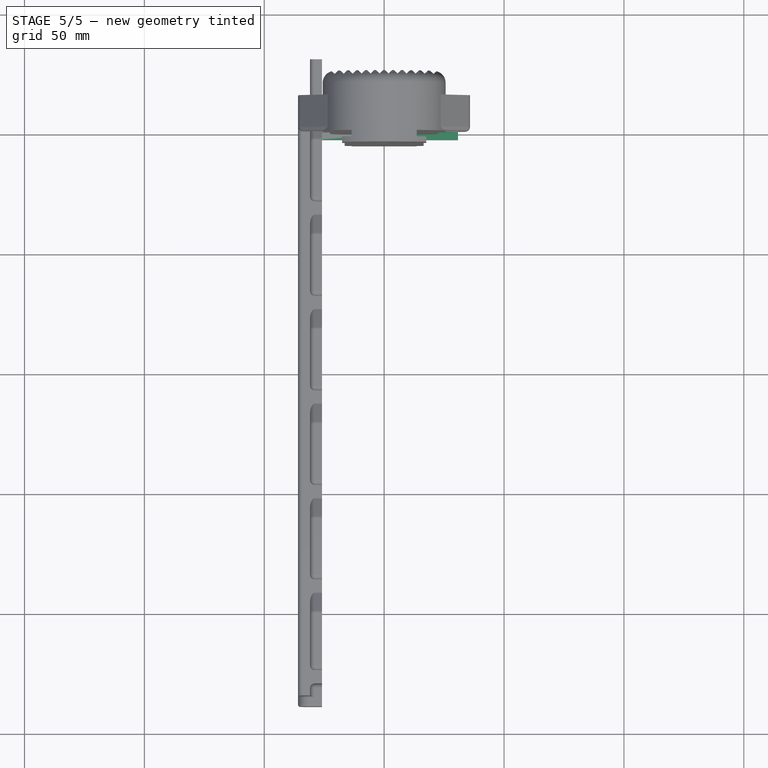
[diagram: stage 5 of 5 — top view after this stage's code; geometry added in this stage tinted green]
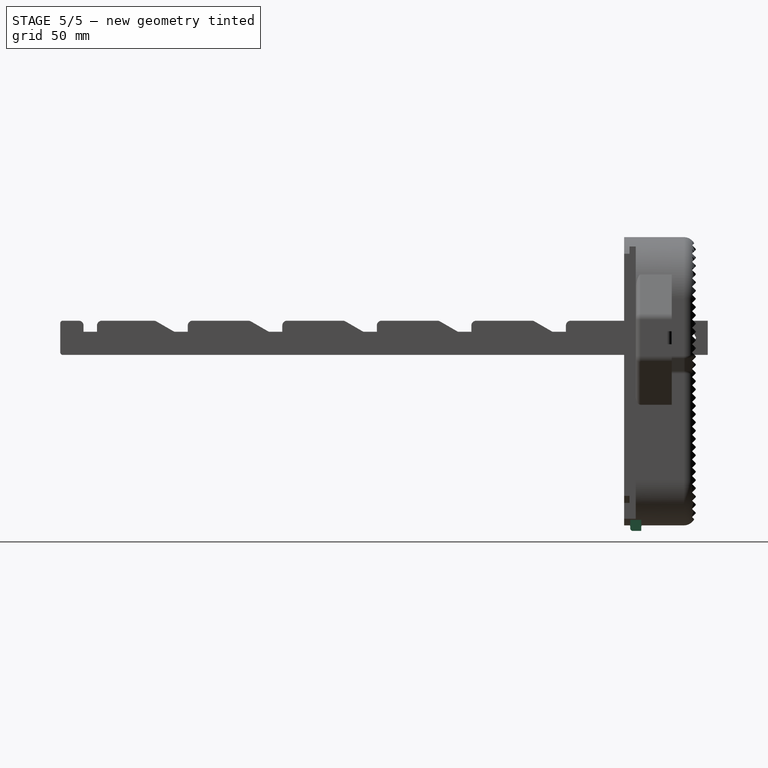
[diagram: stage 5 of 5 — right view after this stage's code; geometry added in this stage tinted green]
FEATURE [Sketcher::SketchObject] Sketch016  label="CrosspinBodySketch"
  FullyConstrained = true
  MapMode = 5
  Placement = pos=(0,0,0) rot=(0.57735,0.57735,0.57735;2.0944rad)
  Support = -> [YZ_Plane004]
  expr: Constraints[19] = <<TelescopingBarSettings>>.CrosspinThickness
  sketch-geometry (7):
    g0: LineSegment StartX=2.5 StartY=0 StartZ=0 EndX=1.25 EndY=2.16506 EndZ=0
    g1: LineSegment StartX=1.25 StartY=2.16506 StartZ=0 EndX=-1.25 EndY=2.16506 EndZ=0
    g2: LineSegment StartX=-1.25 StartY=2.16506 StartZ=0 EndX=-2.5 EndY=2.2e-15 EndZ=0
    g3: LineSegment StartX=-2.5 StartY=2.2e-15 StartZ=0 EndX=-1.25 EndY=-2.16506 EndZ=0
    g4: LineSegment StartX=-1.25 StartY=-2.16506 StartZ=0 EndX=1.25 EndY=-2.16506 EndZ=0
    g5: LineSegment StartX=1.25 StartY=-2.16506 StartZ=0 EndX=2.5 EndY=0 EndZ=0
    g6: Circle CenterX=0 CenterY=0 CenterZ=0 NormalX=0 NormalY=0 NormalZ=1 AngleXU=0 Radius=2.5
  constraints (16):
    c: Coincident(g0,g1)
    c: Coincident(g1,g2)
    c: Coincident(g2,g3)
    c: Coincident(g3,g4)
    c: Coincident(g4,g5)
    c: Coincident(g5,g0)
    c: Equal(g0, g1-g5) x5
    c: PointOnObject(g0,g6)
    c: PointOnObject(g1,g6)
    c: PointOnObject(g2,g6)
    c: PointOnObject(g3,g6)
    c: PointOnObject(g4,g6)
    c: PointOnObject(g5,g6)
    c: Coincident(g6,g-1)
    c: Horizontal(g0,g-1)
    c: DistanceX(g2,g0) = 5
FEATURE [PartDesign::Pad] Pad009  label="CrosspinBodyPad"
  Direction = (1,1,1)
  Length = 19
  Length2 = 100
  Midplane = true
  Placement = pos=(0,0,0) rot=(0.57735,0.57735,0.57735;2.0944rad)
  Profile = -> Sketch016
  Type = 0
FEATURE [PartDesign::Body] Body003  label="PadCrosspin"
  Group = -> [Sketch016,Pad009]
  Origin = -> Origin004
  Placement = pos=(26,22.5,78.239) rot=(0,0,1;0rad)
  Tip = -> Pad009
  expr: .Placement.Base.z = <<P90Measurements>>.PadWidestWidthOuterShoulderDistanceFromReferencePoint + <<TelescopingBarSettings>>.BarThickness + <<TelescopingBarSettings>>.CrosspinThickness / 2
  expr: .Placement.Base.y = <<TelescopingBarSettings>>.BarOffsetFromCenter - <<TelescopingBarSettings>>.BarThickness + <<ProjectSettings>>.LooseTolerance - <<TelescopingPadSettings>>.TelescopingButtThickness - <<TelescopingBarSettings>>.CrosspinThickness / 2 - <<ProjectSettings>>.LooseTolerance
FEATURE [Sketcher::SketchObject] Sketch017  label="LockingPinBodySketch"
  FullyConstrained = true
  MapMode = 5
  Placement = pos=(0,0,0) rot=(0.57735,0.57735,0.57735;2.0944rad)
  Support = -> [YZ_Plane005]
  expr: Constraints[6] = <<TelescopingBarSettings>>.LockingPinThickness - <<ProjectSettings>>.TightTolerance * 2
  sketch-geometry (4):
    g0: LineSegment StartX=-2.3 StartY=2.3 StartZ=0 EndX=2.3 EndY=2.3 EndZ=0
    g1: LineSegment StartX=2.3 StartY=2.3 StartZ=0 EndX=2.3 EndY=-2.3 EndZ=0
    g2: LineSegment StartX=2.3 StartY=-2.3 StartZ=0 EndX=-2.3 EndY=-2.3 EndZ=0
    g3: LineSegment StartX=-2.3 StartY=-2.3 StartZ=0 EndX=-2.3 EndY=2.3 EndZ=0
  constraints (10):
    c: Coincident(g0,g1)
    c: Coincident(g1,g2)
    c: Coincident(g2,g3)
    c: Coincident(g3,g0)
    c: Horizontal(g2)
    c: Vertical(g1)
    c: DistanceX(g0,g0) = 4.6
    c: Equal(g3,g0)
    c: Symmetric(g2,g0,g-1)
    c: Symmetric(g0,g0,g-2)
FEATURE [PartDesign::Pad] Pad010  label="LockingPinBodyPad"
  Direction = (1,1,1)
  Length = 61.5718
  Length2 = 100
  Midplane = true
  Placement = pos=(0,0,0) rot=(0.57735,0.57735,0.57735;2.0944rad)
  Profile = -> Sketch017
  Type = 0
  expr: Length = Sketch010.Constraints.DistanceFromCenterlineToOutsideOfBarInsertArm * 2 - <<TelescopingBarSettings>>.BarThickness * 2
FEATURE [Sketcher::SketchObject] Sketch019  label="LockingButtonHoleSketch"
  FullyConstrained = true
  MapMode = 5
  Support = -> [XY_Plane]
  expr: Constraints[9] = <<P90Measurements>>.PadBottomWidth + <<ProjectSettings>>.LooseTolerance * 2
  expr: Constraints[10] = <<CentralPadSettings>>.PadThickness / 2 - <<TelescopingBarSettings>>.LockingPinThickness / 2 - <<ProjectSettings>>.LooseTolerance
  sketch-geometry (4):
    g0: LineSegment StartX=-4.11 StartY=12.92 StartZ=0 EndX=4.11 EndY=12.92 EndZ=0
    g1: LineSegment StartX=4.11 StartY=12.92 StartZ=0 EndX=4.11 EndY=4.7 EndZ=0
    g2: LineSegment StartX=4.11 StartY=4.7 StartZ=0 EndX=-4.11 EndY=4.7 EndZ=0
    g3: LineSegment StartX=-4.11 StartY=4.7 StartZ=0 EndX=-4.11 EndY=12.92 EndZ=0
  constraints (11):
    c: Coincident(g0,g1)
    c: Coincident(g1,g2)
    c: Coincident(g2,g3)
    c: Coincident(g3,g0)
    c: Horizontal(g2)
    c: Vertical(g1)
    c: Vertical(g3)
    c: Equal(g0,g1)
    c: Symmetric(g0,g0,g-2)
    c: DistanceX(g0,g0) = 8.22
    c: DistanceY(g-1,g2) = 4.7
FEATURE [PartDesign::Pocket] Pocket008  label="LockingButtonHolePocket"
  BaseFeature = -> Pocket007
  Length = 110.739
  Length2 = 100
  Placement = pos=(0,0,0) rot=(1,0,0;1.5708rad)
  Profile = -> Sketch019
  Reversed = true
  Type = 0
  expr: Length = <<CentralPadSettings>>.LockingButtonHoleDepth
FEATURE [Sketcher::SketchObject] Sketch020  label="ButtonBodySketch"
  FullyConstrained = true
  MapMode = 5
  Support = -> [XY_Plane006]
  expr: Constraints[8] = <<P90Measurements>>.PadBottomWidth
  sketch-geometry (4):
    g0: LineSegment StartX=-3.81 StartY=3.81 StartZ=0 EndX=3.81 EndY=3.81 EndZ=0
    g1: LineSegment StartX=3.81 StartY=3.81 StartZ=0 EndX=3.81 EndY=-3.81 EndZ=0
    g2: LineSegment StartX=3.81 StartY=-3.81 StartZ=0 EndX=-3.81 EndY=-3.81 EndZ=0
    g3: LineSegment StartX=-3.81 StartY=-3.81 StartZ=0 EndX=-3.81 EndY=3.81 EndZ=0
  constraints (10):
    c: Coincident(g0,g1)
    c: Coincident(g1,g2)
    c: Coincident(g2,g3)
    c: Coincident(g3,g0)
    c: Horizontal(g0)
    c: Vertical(g1)
    c: Symmetric(g1,g2,g-2)
    c: Symmetric(g0,g2,g-1)
    c: DistanceX(g0,g0) = 7.62
    c: Equal(g0,g3)
FEATURE [PartDesign::Pad] Pad011  label="ButtonBodyPad"
  Direction = (1,1,1)
  Length = 100.739
  Length2 = 100
  Profile = -> Sketch020
  Type = 0
  expr: Length = <<CentralPadSettings>>.LockingButtonHoleDepth - 10mm
FEATURE [Sketcher::SketchObject] Sketch021  label="ButtonLockingPinHoleSketch"
  FullyConstrained = true
  MapMode = 5
  Placement = pos=(0,0,0) rot=(0.57735,0.57735,0.57735;2.0944rad)
  Support = -> [YZ_Plane006]
  expr: Constraints[9] = <<P90Measurements>>.PadWidestWidthOuterShoulderDistanceFromReferencePoint + <<TelescopingBarSettings>>.BarThickness + <<TelescopingBarSettings>>.LockingPinThickness * 2
  expr: Constraints[8] = <<TelescopingBarSettings>>.LockingPinThickness
  expr: Constraints[10] = <<P90Measurements>>.PadBottomWidth / 2
  sketch-geometry (4):
    g0: LineSegment StartX=-3.81 StartY=90.739 StartZ=0 EndX=1.19 EndY=90.739 EndZ=0
    g1: LineSegment StartX=1.19 StartY=90.739 StartZ=0 EndX=1.19 EndY=85.739 EndZ=0
    g2: LineSegment StartX=1.19 StartY=85.739 StartZ=0 EndX=-3.81 EndY=85.739 EndZ=0
    g3: LineSegment StartX=-3.81 StartY=85.739 StartZ=0 EndX=-3.81 EndY=90.739 EndZ=0
  constraints (12):
    c: Coincident(g0,g1)
    c: Coincident(g1,g2)
    c: Coincident(g2,g3)
    c: Coincident(g3,g0)
    c: Horizontal(g2)
    c: Vertical(g1)
    c: Vertical(g3)
    c: Equal(g3,g0)
    c: DistanceX(g0,g0) = 5
    c: DistanceY(g-1,g2) = 85.739
    c: DistanceX(g2,g-1) = 3.81
    c: Horizontal(g0)
FEATURE [PartDesign::Pocket] Pocket009  label="ButtonLockingPinHolePocket"
  BaseFeature = -> Pad011
  Length = 5
  Length2 = 100
  Midplane = true
  Profile = -> Sketch021
  Type = 1
FEATURE [Sketcher::SketchObject] Sketch022  label="BCGHoleSketch"
  AttachmentOffset = pos=(0,0,4.8768) rot=(0,0,1;0rad)
  FullyConstrained = true
  MapMode = 5
  Placement = pos=(0,-4.8768,-1.1e-15) rot=(1,0,0;1.5708rad)
  Support = -> [XZ_Plane]
  expr: .AttachmentOffset.Base.z = <<P90Measurements>>.DovetailHeight
  expr: Constraints[2] = <<P90Measurements>>.PadBCGHoleDiameter + <<ProjectSettings>>.LooseTolerance * 2
  expr: Constraints[1] = <<P90Measurements>>.PadBCGHoleFromReferencePoint + <<P90Measurements>>.PadBCGHoleDiameter / 2
  sketch-geometry (1):
    g0: Circle CenterX=0 CenterY=79.6417 CenterZ=0 NormalX=0 NormalY=0 NormalZ=1 AngleXU=0 Radius=3.8179
  constraints (3):
    c: PointOnObject(g0,g-2)
    c: DistanceY(g-1,g0) = 79.6417
    c: Diameter(g0) = 7.6358
FEATURE [PartDesign::Pocket] Pocket010  label="BCGHolePocket"
  BaseFeature = -> Pocket008
  Length = 9.525
  Length2 = 100
  Placement = pos=(0,0,0) rot=(1,0,0;1.5708rad)
  Profile = -> Sketch022
  Refine = true
  Type = 0
  expr: Length = <<P90Measurements>>.PadBCGHoleDepth
FEATURE [PartDesign::Fillet] Fillet004  label="Slide Fillet"
  Base = -> Pad010 [Edge8]
  BaseFeature = -> Pad010
  Placement = pos=(0,0,0) rot=(0.57735,0.57735,0.57735;2.0944rad)
  Radius = 1
  SupportTransform = false
FEATURE [PartDesign::Body] Body004  label="LockingPin"
  Group = -> [Sketch017,Pad010,Fillet004]
  Origin = -> Origin005
  Placement = pos=(0,7.5,82.939) rot=(0,0,1;0rad)
  Tip = -> Fillet004
  expr: .Placement.Base.y = <<CentralPadSettings>>.PadThickness / 2
  expr: .Placement.Base.z = <<P90Measurements>>.PadWidestWidthOuterShoulderDistanceFromReferencePoint + <<TelescopingBarSettings>>.BarThickness * 2 - <<ProjectSettings>>.LooseTolerance + <<TelescopingBarSettings>>.LockingPinThickness / 2
FEATURE [PartDesign::Fillet] Fillet005
  Base = -> Pocket009 [Face4,Edge2,Edge13,Edge11,Edge1,Edge7,Edge17]
  BaseFeature = -> Pocket009
  Radius = 2
  SupportTransform = false
FEATURE [PartDesign::Body] Body005  label="LockingButton"
  Group = -> [Sketch020,Pad011,Sketch021,Pocket009,Fillet005]
  Origin = -> Origin006
  Placement = pos=(0,8.84,-5) rot=(0,0,1;0rad)
  Tip = -> Fillet005
  expr: .Placement.Base.y = <<CentralPadSettings>>.PadThickness / 2 - <<P90Measurements>>.PadBottomWidth / 2 + <<TelescopingBarSettings>>.LockingPinThickness + <<ProjectSettings>>.LooseTolerance / 2
FEATURE [PartDesign::Fillet] Fillet006  label="BarArmFillet"
  Base = -> Pocket010 [Edge64,Edge173,Edge133,Edge158]
  BaseFeature = -> Pocket010
  Placement = pos=(0,0,0) rot=(1,0,0;1.5708rad)
  Radius = 2
  SupportTransform = false
FEATURE [PartDesign::Fillet] Fillet007  label="Comfort Fillet"
  Base = -> Fillet006 [Edge174,Edge176,Edge189,Edge177]
  BaseFeature = -> Fillet006
  Placement = pos=(0,0,0) rot=(1,0,0;1.5708rad)
  Radius = 2
  SupportTransform = false
FEATURE [App::Part] Part002  label="LockingMechanism"
  Group = -> [Body005,Body004]
  Origin = -> Origin009
FEATURE [Sketcher::SketchObject] Sketch030  label="LockingPinHoleChamferSketch"
  FullyConstrained = true
  MapMode = 5
  Placement = pos=(0,0,0) rot=(0.57735,0.57735,0.57735;2.0944rad)
  Support = -> [YZ_Plane]
  expr: Constraints[8] = <<TelescopingBarSettings>>.CrosspinThickness + <<ProjectSettings>>.LooseTolerance * 2
  expr: Constraints[9] = <<P90Measurements>>.PadWidestWidthOuterShoulderDistanceFromReferencePoint + <<TelescopingBarSettings>>.BarThickness - <<ProjectSettings>>.LooseTolerance * 2
  expr: Constraints[10] = <<TelescopingBarSettings>>.BarThickness - <<ProjectSettings>>.LooseTolerance
  expr: Constraints[11] = <<TelescopingBarSettings>>.CrosspinThickness * 3 + <<ProjectSettings>>.LooseTolerance * 2
  sketch-geometry (6):
    g0: LineSegment StartX=4.7 StartY=90.739 StartZ=0 EndX=10.3 EndY=90.739 EndZ=0
    g1: LineSegment StartX=10.3 StartY=90.739 StartZ=0 EndX=10.3 EndY=75.139 EndZ=0
    g2: LineSegment StartX=10.3 StartY=75.139 StartZ=0 EndX=4.7 EndY=75.139 EndZ=0
    g3: LineSegment StartX=4.7 StartY=75.139 StartZ=0 EndX=4.7 EndY=90.739 EndZ=0
    g4: LineSegment StartX=4.7 StartY=90.739 StartZ=0 EndX=7.5 EndY=93.539 EndZ=0
    g5: LineSegment StartX=7.5 StartY=93.539 StartZ=0 EndX=10.3 EndY=90.739 EndZ=0
  constraints (17):
    c: Coincident(g0,g1)
    c: Coincident(g1,g2)
    c: Coincident(g2,g3)
    c: Coincident(g3,g0)
    c: Horizontal(g0)
    c: Horizontal(g2)
    c: Vertical(g1)
    c: Vertical(g3)
    c: DistanceX(g0,g0) = 5.6
    c: DistanceY(g-1,g2) = 75.139
    c: DistanceX(g-1,g2) = 4.7
    c: DistanceY(g1,g1) = 15.6
    c: Coincident(g4,g0)
    c: Coincident(g5,g4)
    c: Coincident(g5,g0)
    c: Equal(g5,g4)
    c: Angle(g5,g0) = 0.785398
FEATURE [PartDesign::Pocket] Pocket015  label="LockingPinSlotPrintSupportFillet"
  BaseFeature = -> Fillet007
  Length = 62.4318
  Length2 = 100
  Midplane = true
  Placement = pos=(0,0,0) rot=(1,0,0;1.5708rad)
  Profile = -> Sketch030
  Type = 0
  expr: Length = <<LockingPinHolePocket>>.Length
FEATURE [Sketcher::SketchObject] Sketch031
  AttachmentOffset = pos=(0,0,-4.7) rot=(0,0,1;0rad)
  FullyConstrained = true
  MapMode = 5
  Placement = pos=(0,4.7,1e-15) rot=(1,0,0;1.5708rad)
  Support = -> [XZ_Plane]
  expr: Constraints[7] = <<P90Measurements>>.PadBottomWidth + <<ProjectSettings>>.LooseTolerance * 2
  expr: .AttachmentOffset.Base.z = -1 * (<<CentralPadSettings>>.PadThickness / 2 - <<TelescopingBarSettings>>.LockingPinThickness / 2 - <<ProjectSettings>>.LooseTolerance)
  expr: Constraints[8] = <<LockingButtonHolePocket>>.Length
  sketch-geometry (3):
    g0: LineSegment StartX=0 StartY=114.849 StartZ=0 EndX=4.11 EndY=110.739 EndZ=0
    g1: LineSegment StartX=4.11 StartY=110.739 StartZ=0 EndX=-4.11 EndY=110.739 EndZ=0
    g2: LineSegment StartX=-4.11 StartY=110.739 StartZ=0 EndX=0 EndY=114.849 EndZ=0
  constraints (9):
    c: PointOnObject(g0,g-2)
    c: Coincident(g0,g1)
    c: Horizontal(g1)
    c: Coincident(g1,g2)
    c: Coincident(g2,g0)
    c: Equal(g0,g2)
    c: Angle(g0,g1) = 0.785398
    c: DistanceX(g1,g1) = 8.22
    c: DistanceY(g-1,g0) = 110.739
FEATURE [PartDesign::Pocket] Pocket016  label="LockingButtonSlotPrintSupportChamferPocket"
  BaseFeature = -> Pocket015
  Length = 8.22
  Length2 = 100
  Placement = pos=(0,0,0) rot=(1,0,0;1.5708rad)
  Profile = -> Sketch031
  Type = 0
  expr: Length = <<P90Measurements>>.PadBottomWidth + <<ProjectSettings>>.LooseTolerance * 2
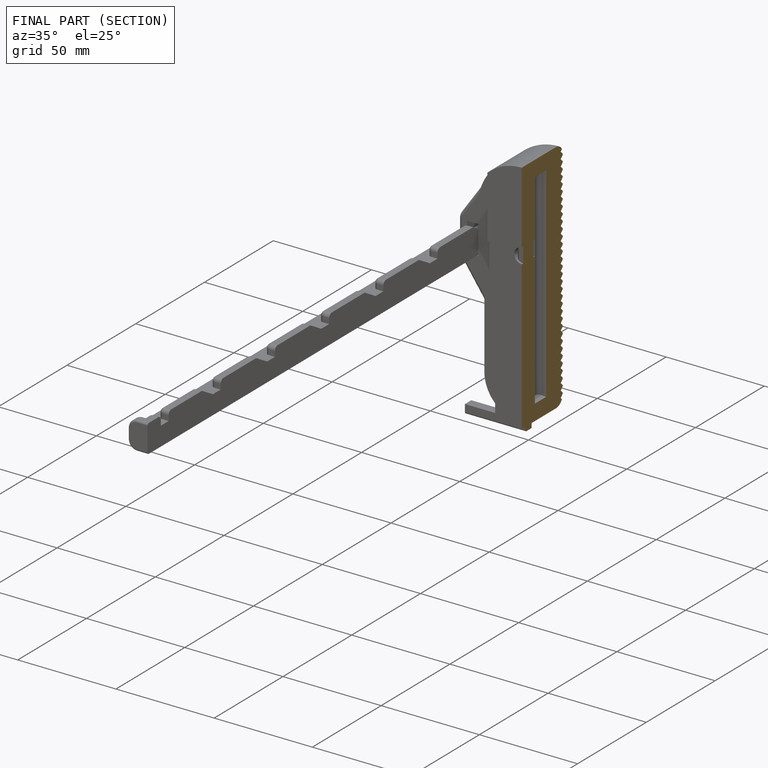
[diagram: finished part — half-section view (interior)]
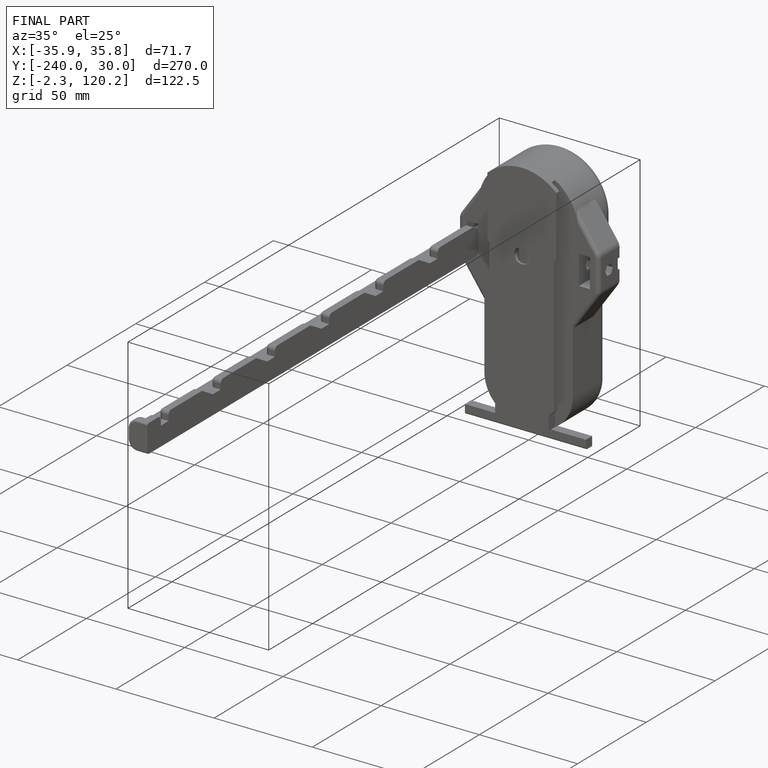
[diagram: finished part — iso view with bounding-box wireframe]
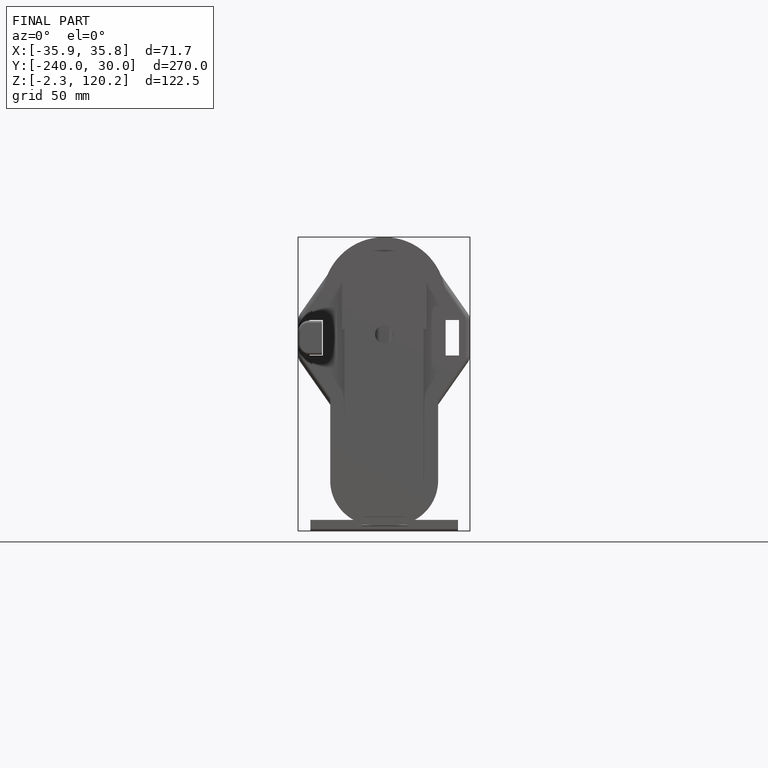
[diagram: finished part — front view with bounding-box wireframe]
